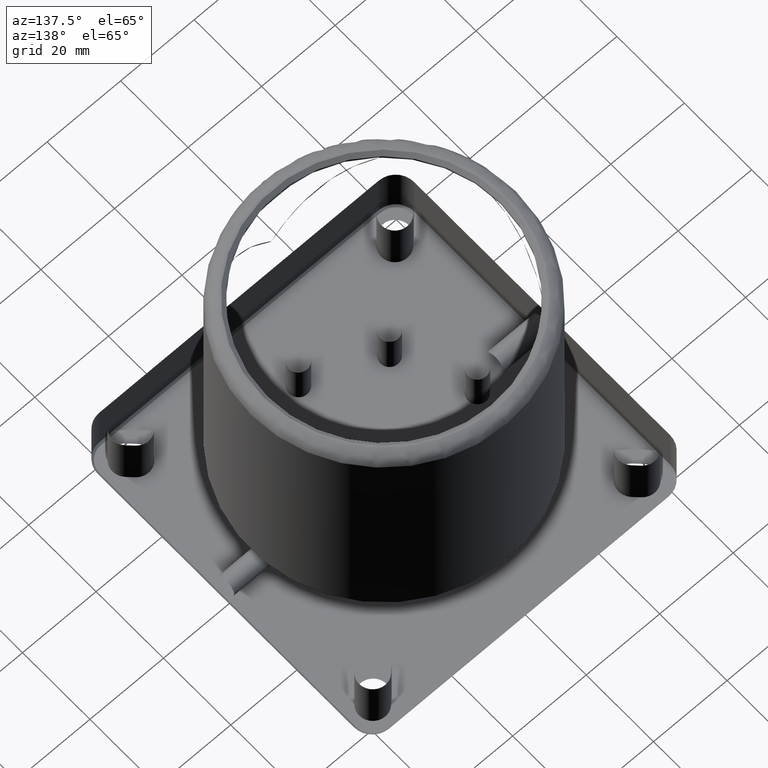
[diagram: clean part render]
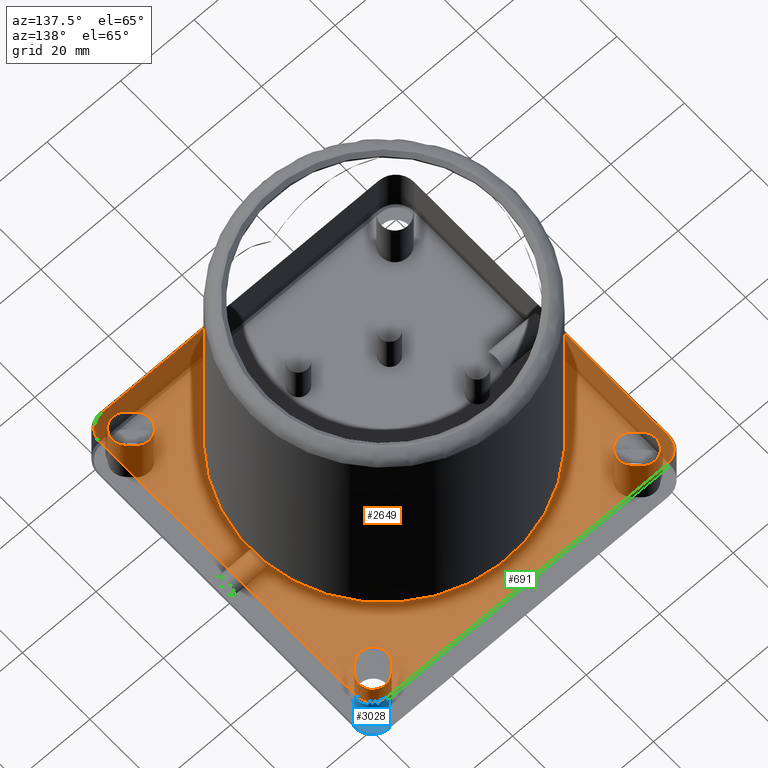
[diagram: same view with three faces highlighted in distinct colors, each labeled with its STEP entity id]
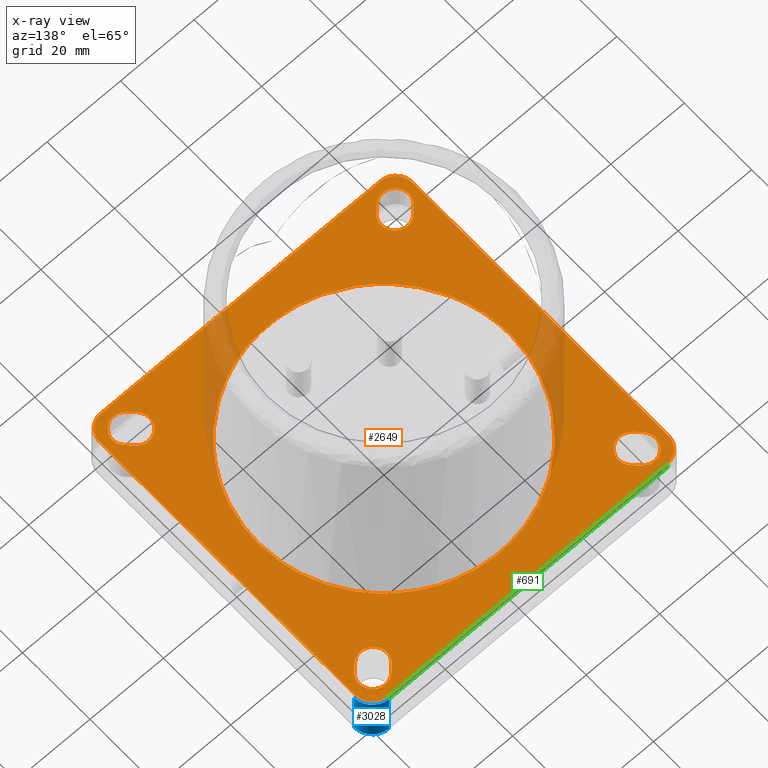
[diagram: x-ray of the same camera — body ghosted, the three highlighted faces saturated]
A machine part, auxiliary view with three faces highlighted in distinct colors.
The next image is the same camera in x-ray (body ghosted, the three faces saturated) — at least one of them is partly hidden behind the body in this view.
Their STEP definitions:

[orange] entity #2649 — the highlighted planar face has unit normal (0, 0, 1).
#3 = CARTESIAN_POINT ( 'NONE',  ( -8.401569188237022701, -33.22235698978486340, 15.00000000000000000 ) ) ;
#10 = CARTESIAN_POINT ( 'NONE',  ( 31.81856637399124565, 12.67448652400060993, 15.00000000000000000 ) ) ;
#16 = CARTESIAN_POINT ( 'NONE',  ( 32.59762261269996486, 37.83021279348017885, 15.00000000000000000 ) ) ;
#18 = CARTESIAN_POINT ( 'NONE',  ( -28.78525613063744260, 18.55995066985454756, 15.00000000000000000 ) ) ;
#20 = CARTESIAN_POINT ( 'NONE',  ( 2.094545233178836341, -34.24996756767365014, 15.00000000000000000 ) ) ;
#21 = CARTESIAN_POINT ( 'NONE',  ( 37.83021279348029253, -32.59762261269983696, 15.00000000000000000 ) ) ;
#33 = CARTESIAN_POINT ( 'NONE',  ( -19.47697120087105205, 28.17296328099083169, 15.00000000000000000 ) ) ;
#35 = CARTESIAN_POINT ( 'NONE',  ( -6.167846680926237113, -33.69007565662280967, 15.00000000000000000 ) ) ;
#41 = CARTESIAN_POINT ( 'NONE',  ( 34.25000000000000000, 0.000000000000000000, 15.00000000000000000 ) ) ;
#42 = CIRCLE ( 'NONE', #1908, 3.700000000000001954 ) ;
#48 = DIRECTION ( 'NONE',  ( -0.7071067811865457964, 0.7071067811865492381, -0.000000000000000000 ) ) ;
#50 = CARTESIAN_POINT ( 'NONE',  ( 0.000000000000000000, 34.25000000000000000, 15.00000000000000000 ) ) ;
#54 = CARTESIAN_POINT ( 'NONE',  ( 8.398337303323046399, -33.20929556522444415, 15.00000000000000000 ) ) ;
#71 = CARTESIAN_POINT ( 'NONE',  ( -28.25679385229699392, -19.35566686671187497, 15.00000000000000000 ) ) ;
#76 = CARTESIAN_POINT ( 'NONE',  ( -42.50000000002977885, 38.00000000000000711, 14.99999999997021405 ) ) ;
#78 = CARTESIAN_POINT ( 'NONE',  ( 33.63969707683023103, 6.436882944549512153, 15.00000000000000000 ) ) ;
#83 = LINE ( 'NONE', #1948, #3111 ) ;
#85 = CARTESIAN_POINT ( 'NONE',  ( 0.000000000000000000, 42.49999999999999289, 15.00000000000000000 ) ) ;
#89 = CARTESIAN_POINT ( 'NONE',  ( -28.42224238251371915, -19.11125541277128548, 15.00000000000000000 ) ) ;
#91 = CARTESIAN_POINT ( 'NONE',  ( 33.74744920062587994, -5.845762482553018557, 15.00000000000000000 ) ) ;
#102 = CARTESIAN_POINT ( 'NONE',  ( -26.58435895103849944, -21.59554893376271778, 15.00000000000000000 ) ) ;
#103 = CARTESIAN_POINT ( 'NONE',  ( -37.83021279348029253, 32.59762261269983696, 15.00000000000000000 ) ) ;
#104 = CARTESIAN_POINT ( 'NONE',  ( 33.70180083634940615, -6.103457008374947534, 15.00000000000000000 ) ) ;
#110 = CARTESIAN_POINT ( 'NONE',  ( -7.048726455035094318, 33.51689659489139217, 15.00000000000000000 ) ) ;
#116 = CARTESIAN_POINT ( 'NONE',  ( -28.66709625923881788, -18.74193405344112051, 15.00000000000000000 ) ) ;
#127 = CARTESIAN_POINT ( 'NONE',  ( -12.63951289224551644, 31.83247371030407891, 15.00000000000000000 ) ) ;
#134 = CARTESIAN_POINT ( 'NONE',  ( -34.25001621617688841, 1.047272616528097888, 15.00000000000000000 ) ) ;
#144 = CARTESIAN_POINT ( 'NONE',  ( -8.933324408635415992, 33.06946468238766812, 15.00000000000000000 ) ) ;
#152 = CARTESIAN_POINT ( 'NONE',  ( -34.20237506328763288, 2.090261803551808573, 15.00000000000000000 ) ) ;
#155 = CARTESIAN_POINT ( 'NONE',  ( 22.50829446746231710, -25.84291078375484929, 15.00000000000000000 ) ) ;
#163 = CARTESIAN_POINT ( 'NONE',  ( 5.910182282163114920, 33.73628621925971061, 15.00000000000000000 ) ) ;
#169 = DIRECTION ( 'NONE',  ( -1.000000000000000000, 0.000000000000000000, 0.000000000000000000 ) ) ;
#170 = PLANE ( 'NONE',  #1103 ) ;
#171 = CARTESIAN_POINT ( 'NONE',  ( -33.66552296086445040, -6.300494463423252256, 15.00000000000000000 ) ) ;
#172 = EDGE_CURVE ( 'NONE', #2335, #1732, #3082, .T. ) ;
#174 = CARTESIAN_POINT ( 'NONE',  ( 18.92704542950940549, -28.54522247397420287, 15.00000000000000000 ) ) ;
#181 = CARTESIAN_POINT ( 'NONE',  ( 31.51595084812570136, 13.40942303025177829, 15.00000000000000000 ) ) ;
#191 = CARTESIAN_POINT ( 'NONE',  ( -32.25406854607778939, -11.57463293048441955, 15.00000000000000000 ) ) ;
#193 = CARTESIAN_POINT ( 'NONE',  ( 31.41929267707668672, -13.68323574352899463, 15.00000000000000000 ) ) ;
#199 = CARTESIAN_POINT ( 'NONE',  ( 18.74193405344113472, 28.66709625923880722, 15.00000000000000000 ) ) ;
#201 = AXIS2_PLACEMENT_3D ( 'NONE', #527, #1555, #3161 ) ;
#207 = CARTESIAN_POINT ( 'NONE',  ( -34.05937051280174899, -4.172662868201526543, 15.00000000000000000 ) ) ;
#209 = CIRCLE ( 'NONE', #2132, 3.700000000000001954 ) ;
#212 = CARTESIAN_POINT ( 'NONE',  ( 28.90220035114737485, -18.37733982263557664, 15.00000000000000000 ) ) ;
#218 = CARTESIAN_POINT ( 'NONE',  ( 17.76466306192001809, 29.28431529739652106, 15.00000000000000000 ) ) ;
#223 = VECTOR ( 'NONE', #570, 1000.000000000000000 ) ;
#227 = CARTESIAN_POINT ( 'NONE',  ( -30.94146827231229580, 14.73245590150050610, 15.00000000000000000 ) ) ;
#229 = CARTESIAN_POINT ( 'NONE',  ( 29.05650511067647201, -18.13302207477330441, 15.00000000000000000 ) ) ;
#233 = EDGE_CURVE ( 'NONE', #1342, #1410, #1580, .T. ) ;
#234 = VERTEX_POINT ( 'NONE', #1060 ) ;
#235 = CARTESIAN_POINT ( 'NONE',  ( 27.83469084586458919, 19.95978482340471061, 15.00000000000000000 ) ) ;
#243 = CARTESIAN_POINT ( 'NONE',  ( -18.86549186962017544, 28.58603145343085927, 15.00000000000000000 ) ) ;
#245 = CARTESIAN_POINT ( 'NONE',  ( -11.04674015614585514, -32.41984018096584208, 15.00000000000000000 ) ) ;
#251 = CARTESIAN_POINT ( 'NONE',  ( 18.43831468229871362, 28.86342155280103938, 15.00000000000000000 ) ) ;
#255 = LINE ( 'NONE', #1291, #2569 ) ;
#256 = VERTEX_POINT ( 'NONE', #824 ) ;
#260 = CARTESIAN_POINT ( 'NONE',  ( -13.93916018970815784, 31.28670844383865557, 15.00000000000000000 ) ) ;
#262 = CARTESIAN_POINT ( 'NONE',  ( 7.590252144583220506, -33.39966826912984743, 15.00000000000000000 ) ) ;
#269 = VERTEX_POINT ( 'NONE', #1559 ) ;
#276 = CARTESIAN_POINT ( 'NONE',  ( -12.80873529549015366, 31.76474533847592596, 15.00000000000000000 ) ) ;
#279 = CARTESIAN_POINT ( 'NONE',  ( -4.683813625290834892, -33.92838573158413595, 15.00000000000000000 ) ) ;
#280 = DIRECTION ( 'NONE',  ( 0.7071067811865457964, -0.7071067811865492381, -0.000000000000000000 ) ) ;
#285 = CARTESIAN_POINT ( 'NONE',  ( 31.83247371030432760, 12.63951289224462293, 15.00000000000000000 ) ) ;
#286 = DIRECTION ( 'NONE',  ( 0.000000000000000000, 0.000000000000000000, -1.000000000000000000 ) ) ;
#293 = CARTESIAN_POINT ( 'NONE',  ( -31.41929267712369267, 13.68323574344577942, 15.00000000000000000 ) ) ;
#295 = CARTESIAN_POINT ( 'NONE',  ( -11.56967876059497691, -32.23800580613644939, 15.00000000000000000 ) ) ;
#303 = CARTESIAN_POINT ( 'NONE',  ( 33.61341712356931311, 6.573140070188857820, 15.00000000000000000 ) ) ;
#307 = ORIENTED_EDGE ( 'NONE', *, *, #2168, .F. ) ;
#311 = CARTESIAN_POINT ( 'NONE',  ( 3.648320439849575880, 34.05942728034427347, 15.00000000000000000 ) ) ;
#313 = CARTESIAN_POINT ( 'NONE',  ( -5.974616159770555157, -33.72493137529672680, 15.00000000000000000 ) ) ;
#333 = CARTESIAN_POINT ( 'NONE',  ( -12.41339303772131863, -31.92131513291097278, 15.00000000000000000 ) ) ;
#336 = CARTESIAN_POINT ( 'NONE',  ( 33.67820886826766724, -6.232234545115964863, 15.00000000000000000 ) ) ;
#345 = DIRECTION ( 'NONE',  ( -1.000000000000000000, 0.000000000000000000, 0.000000000000000000 ) ) ;
#349 = CARTESIAN_POINT ( 'NONE',  ( -12.34871839274843452, -31.94646840852209735, 15.00000000000000000 ) ) ;
#353 = CARTESIAN_POINT ( 'NONE',  ( 34.25000000000000000, 0.000000000000000000, 15.00000000000000000 ) ) ;
#364 = CARTESIAN_POINT ( 'NONE',  ( -26.95508303467179800, -21.13917616691287549, 15.00000000000000000 ) ) ;
#367 = CARTESIAN_POINT ( 'NONE',  ( 32.59844258411862228, -10.52287797758834209, 15.00000000000000000 ) ) ;
#373 = CARTESIAN_POINT ( 'NONE',  ( 5.974616159758819656, 33.72493137529836105, 15.00000000000000000 ) ) ;
#374 = LINE ( 'NONE', #2442, #1348 ) ;
#376 = CARTESIAN_POINT ( 'NONE',  ( 42.49999999999999289, 0.000000000000000000, 15.00000000000000000 ) ) ;
#378 = CARTESIAN_POINT ( 'NONE',  ( -12.57361905433691440, -31.85856045621039812, 15.00000000000000000 ) ) ;
#380 = CARTESIAN_POINT ( 'NONE',  ( 33.68452356094980615, -6.198107797789387696, 15.00000000000000000 ) ) ;
#387 = CARTESIAN_POINT ( 'NONE',  ( 2.090261803570587329, 34.20237506327735844, 15.00000000000000000 ) ) ;
#393 = CARTESIAN_POINT ( 'NONE',  ( -18.25539010325727318, -28.97975794787004133, 15.00000000000000000 ) ) ;
#394 = AXIS2_PLACEMENT_3D ( 'NONE', #435, #3375, #3328 ) ;
#396 = CARTESIAN_POINT ( 'NONE',  ( 33.71338742422386048, -6.039049223776272513, 15.00000000000000000 ) ) ;
#402 = CARTESIAN_POINT ( 'NONE',  ( -12.67448652399808573, 31.81856637399247489, 15.00000000000000000 ) ) ;
#403 = EDGE_CURVE ( 'NONE', #430, #1342, #1951, .T. ) ;
#409 = CARTESIAN_POINT ( 'NONE',  ( -33.89264675884417954, 4.942419207225575484, 15.00000000000000000 ) ) ;
#413 = CARTESIAN_POINT ( 'NONE',  ( 31.87075608390148318, -12.54267017343978097, 15.00000000000000000 ) ) ;
#419 = CARTESIAN_POINT ( 'NONE',  ( 5.200757074895846266, 33.85392920051637589, 15.00000000000000000 ) ) ;
#423 = ORIENTED_EDGE ( 'NONE', *, *, #2185, .F. ) ;
#428 = FACE_OUTER_BOUND ( 'NONE', #2408, .T. ) ;
#429 = CARTESIAN_POINT ( 'NONE',  ( -33.63969707683100552, -6.436882944550545105, 15.00000000000000000 ) ) ;
#430 = VERTEX_POINT ( 'NONE', #1574 ) ;
#431 = CARTESIAN_POINT ( 'NONE',  ( 19.35566686671184300, -28.25679385229059903, 15.00000000000000000 ) ) ;
#432 = VERTEX_POINT ( 'NONE', #2808 ) ;
#435 = CARTESIAN_POINT ( 'NONE',  ( -36.62813126546316056, 36.62813126546316056, 15.00000000000000000 ) ) ;
#437 = VERTEX_POINT ( 'NONE', #3403 ) ;
#438 = CARTESIAN_POINT ( 'NONE',  ( 31.28670844381884564, 13.93916018974887905, 15.00000000000000000 ) ) ;
#447 = CARTESIAN_POINT ( 'NONE',  ( -33.81223305663351653, 5.458827228200973991, 15.00000000000000000 ) ) ;
#450 = CARTESIAN_POINT ( 'NONE',  ( 29.57833700595369919, -17.26849800231602217, 15.00000000000000000 ) ) ;
#457 = CARTESIAN_POINT ( 'NONE',  ( 27.31400651880553099, 20.67318854349409207, 15.00000000000000000 ) ) ;
#464 = DIRECTION ( 'NONE',  ( 0.000000000000000000, -1.000000000000000000, -0.000000000000000000 ) ) ;
#465 = CARTESIAN_POINT ( 'NONE',  ( -33.73628621926173565, 5.910182282159404998, 15.00000000000000000 ) ) ;
#467 = CARTESIAN_POINT ( 'NONE',  ( 31.88343372082194094, -12.51036171264436447, 15.00000000000000000 ) ) ;
#473 = DIRECTION ( 'NONE',  ( -1.000000000000000000, 0.000000000000000000, 0.000000000000000000 ) ) ;
#475 = CARTESIAN_POINT ( 'NONE',  ( 31.40294799521646496, 13.67513310872388388, 15.00000000000000000 ) ) ;
#480 = CARTESIAN_POINT ( 'NONE',  ( 0.000000000000000000, 0.000000000000000000, 15.00000000000000000 ) ) ;
#481 = CARTESIAN_POINT ( 'NONE',  ( -33.67820886826766724, 6.232234545115967528, 15.00000000000000000 ) ) ;
#486 = CARTESIAN_POINT ( 'NONE',  ( 20.19758606340748841, -27.66112940352573446, 15.00000000000000000 ) ) ;
#492 = CARTESIAN_POINT ( 'NONE',  ( 16.77065970608899903, 29.86911697896183782, 15.00000000000000000 ) ) ;
#500 = CARTESIAN_POINT ( 'NONE',  ( -30.14693000927493571, 16.26612846423725145, 15.00000000000000000 ) ) ;
#502 = CARTESIAN_POINT ( 'NONE',  ( 6.334602529992005238, -33.65910432895856275, 15.00000000000000000 ) ) ;
#509 = CARTESIAN_POINT ( 'NONE',  ( 17.26849800222000297, 29.57833700600880178, 15.00000000000000000 ) ) ;
#517 = CARTESIAN_POINT ( 'NONE',  ( -28.90220035116389852, 18.37733982260632715, 15.00000000000000000 ) ) ;
#519 = CARTESIAN_POINT ( 'NONE',  ( 6.436882944543308227, -33.63969707683143895, 15.00000000000000000 ) ) ;
#521 = EDGE_CURVE ( 'NONE', #896, #1614, #374, .T. ) ;
#522 = DIRECTION ( 'NONE',  ( -1.000000000000000000, -9.251858538528012264E-15, 0.000000000000000000 ) ) ;
#525 = VERTEX_POINT ( 'NONE', #1154 ) ;
#526 = CARTESIAN_POINT ( 'NONE',  ( 33.51689659488628337, 7.048726455053866857, 15.00000000000000000 ) ) ;
#527 = CARTESIAN_POINT ( 'NONE',  ( -37.99999999999999289, -38.00000000000000000, 14.99999999994043520 ) ) ;
#534 = CARTESIAN_POINT ( 'NONE',  ( -18.92704542950811586, 28.54522247397687451, 15.00000000000000000 ) ) ;
#537 = CARTESIAN_POINT ( 'NONE',  ( 12.80873529549467804, -31.76474533847476067, 15.00000000000000000 ) ) ;
#544 = CARTESIAN_POINT ( 'NONE',  ( 31.84524931138824044, 12.60724380249414089, 15.00000000000000000 ) ) ;
#548 = EDGE_CURVE ( 'NONE', #525, #1451, #83, .T. ) ;
#552 = CARTESIAN_POINT ( 'NONE',  ( -25.89006061742288978, 22.54670132963343576, 15.00000000000000000 ) ) ;
#555 = CARTESIAN_POINT ( 'NONE',  ( 6.913111511777512597, -33.54539644214951721, 15.00000000000000000 ) ) ;
#563 = CARTESIAN_POINT ( 'NONE',  ( 33.65910432895794457, 6.334602529995158271, 15.00000000000000000 ) ) ;
#570 = DIRECTION ( 'NONE',  ( -1.000000000000000000, -0.000000000000000000, 0.000000000000000000 ) ) ;
#571 = CARTESIAN_POINT ( 'NONE',  ( -31.89611135774321582, 12.47805325184275382, 15.00000000000000000 ) ) ;
#573 = CARTESIAN_POINT ( 'NONE',  ( -5.200757074937035540, -33.85392920051059207, 15.00000000000000000 ) ) ;
#580 = CARTESIAN_POINT ( 'NONE',  ( 33.67820886826768145, 6.232234545115955981, 15.00000000000000000 ) ) ;
#587 = CARTESIAN_POINT ( 'NONE',  ( 6.232234545115957758, 33.67820886826766724, 15.00000000000000000 ) ) ;
#589 = CARTESIAN_POINT ( 'NONE',  ( -15.75490427677868333, -30.41177609688649497, 15.00000000000000000 ) ) ;
#604 = CARTESIAN_POINT ( 'NONE',  ( -30.67638040042820791, -15.24414861784204689, 15.00000000000000000 ) ) ;
#620 = CARTESIAN_POINT ( 'NONE',  ( -31.62814452641067575, -13.14329220241548413, 15.00000000000000000 ) ) ;
#634 = CARTESIAN_POINT ( 'NONE',  ( -24.21840725563926000, -24.21840725563925290, 15.00000000000000000 ) ) ;
#636 = CARTESIAN_POINT ( 'NONE',  ( 33.81222241476743307, -5.458884740455831164, 15.00000000000000000 ) ) ;
#643 = CARTESIAN_POINT ( 'NONE',  ( -6.913111511780639873, 33.54539644215014249, 15.00000000000000000 ) ) ;
#648 = CARTESIAN_POINT ( 'NONE',  ( -18.74193405344113117, -28.66709625923880722, 15.00000000000000000 ) ) ;
#649 = AXIS2_PLACEMENT_3D ( 'NONE', #1822, #827, #2887 ) ;
#656 = B_SPLINE_CURVE_WITH_KNOTS ( 'NONE', 3,
 ( #353, #3268, #905, #888, #2998, #876, #2755, #1956, #1650, #636, #1911, #1388, #91, #2465, #1131, #396, #3014, #104, #2189, #2173, #380, #336, #2433, #3237, #3221, #1434, #367, #2739, #2498, #1419, #2823, #736, #670, #1452, #941, #1779, #2772, #1212, #958, #467, #413, #1715, #2584, #193, #2292, #3371, #1469, #2012, #450, #2790, #2565, #1006, #229, #3067, #212, #719, #1245, #2256, #2516, #2324, #2841, #3033, #989, #2533, #1748, #155, #973, #1197, #3324, #486, #2276, #1487, #3305, #431, #1524, #1733, #704, #1262, #174, #1993, #2807, #3050, #2551, #687, #1229, #3340, #2029, #3080, #1764, #1505, #2307, #3355, #2046, #3096, #2899, #2668, #537, #3390, #2931, #2881, #2062, #1544, #822, #2118, #1059, #1615, #3113, #54, #753, #262, #1073, #2915, #555, #2634, #1871, #1798, #2342, #519, #805, #1024, #502, #2098, #1595, #2599, #2137, #20, #1579, #2864, #2079, #3135, #3186, #772, #279, #1818, #573, #1281, #3169, #1350, #788, #1564, #313, #1316, #2377, #2360, #2414, #35, #2619, #1854, #1299, #3, #1041, #2652, #3153, #245, #1836, #295, #1333, #2395, #886, #1923, #2753, #349, #333, #2737, #2495, #2948, #903, #378, #1936, #2216, #2155, #589, #2431, #3266, #842, #2702, #2446, #2996, #1890, #393, #3202, #1092, #3012, #3250, #1432, #1698, #648, #1665, #2478, #634, #1679, #3233, #102, #364, #1631, #2685, #1384, #1368, #1417, #71, #1108, #89, #2171, #872, #2463, #3219, #856, #116, #1906, #1159, #2964, #604, #2720, #1648, #1129, #1953, #2187, #2980, #620, #1401, #1142, #2200, #2027, #3079, #2769, #1195, #1712, #3030, #2305, #191, #2547, #3092, #1175, #1521, #2233, #1730, #2563, #971, #717, #702, #3354, #1990, #987, #429, #2805, #3337, #2821, #171, #1761, #667, #207, #1485, #3065, #134, #152, #1449, #1243, #2253, #1746, #409, #2043, #447, #1503, #3285, #3302, #465, #734, #1227, #2290, #1467, #1778, #2838, #2513, #481, #939, #3048, #685, #2010, #2787, #919, #1972, #2532, #1210, #2272, #3323, #955, #3183, #1815, #1794, #802, #571, #1004, #2393, #1851, #2374, #293, #227, #2060, #500, #1330, #2322, #2614, #2879, #820, #1314, #1056, #517, #2581, #1071, #18, #2928, #1869, #2134, #3150, #552, #2116, #3166, #1297, #1577, #1833, #3369, #2859, #3110, #1259, #33, #750, #1542, #1562, #2597, #2358, #534, #243, #1278, #2913, #2339, #1593, #3388, #1021, #785, #2077, #260, #3131, #769, #3406, #1038, #2095, #2897, #2632, #276, #2650, #1611, #678, #402, #127, #1689, #897, #2264, #1443, #144, #1947, #3055, #913, #2000, #110, #643, #2487, #1411, #1185, #2666, #3312, #2748, #2244, #2763, #3294, #838, #1090, #946, #2781, #50, #2412, #387, #1426, #311, #3022, #1347, #3005, #419, #1170, #2226, #2152, #2472, #163, #373, #3260, #3200, #1152, #1888, #3275, #2946, #587, #932, #2524, #2209, #1628, #2730, #1965, #1460, #661, #1706, #1982, #2505, #1204, #3040, #1722, #1270, #1754, #2037, #3330, #2332, #2556, #2870, #2848, #963, #2539, #1553, #492, #509, #2019, #218, #2608, #2299, #1770, #1532, #251, #742, #2314, #3072, #1289, #199, #996, #2068, #2829, #710, #2349, #726, #1739, #457, #2086, #235, #1495, #2283, #2813, #2572, #1236, #3122, #3398, #1012, #3347, #1030, #695, #980, #2589, #1511, #2797, #3378, #3085, #438, #475, #181, #759, #1251, #1475, #1807, #3361, #1219, #2052, #3103, #1785, #10, #285, #544, #777, #1570, #1048, #1896, #2889, #1321, #1065, #2938, #526, #1374, #1824, #2692, #303, #2404, #78, #1585, #2125, #563, #2905, #2675, #580, #1860, #2144, #41 ),
 .UNSPECIFIED., .T., .F.,
 ( 4, 3, 3, 3, 3, 3, 3, 3, 3, 3, 3, 3, 3, 3, 3, 3, 3, 3, 3, 3, 3, 3, 3, 3, 3, 3, 3, 3, 3, 3, 3, 3, 3, 3, 3, 3, 3, 3, 3, 3, 3, 3, 3, 3, 3, 3, 3, 3, 3, 3, 3, 3, 3, 3, 3, 3, 3, 3, 3, 3, 3, 3, 3, 3, 3, 3, 3, 3, 3, 3, 3, 3, 3, 3, 3, 3, 3, 3, 3, 3, 3, 3, 3, 3, 3, 3, 3, 3, 3, 3, 3, 3, 3, 3, 3, 3, 3, 3, 3, 3, 3, 3, 3, 3, 3, 3, 3, 3, 3, 3, 3, 3, 3, 3, 3, 3, 3, 3, 3, 3, 3, 3, 3, 3, 3, 3, 3, 3, 3, 3, 3, 3, 3, 3, 3, 3, 3, 3, 3, 3, 3, 3, 3, 3, 3, 3, 3, 3, 3, 3, 3, 3, 3, 3, 3, 3, 3, 3, 3, 3, 3, 3, 3, 3, 3, 3, 3, 3, 4 ),
 ( 0.000000000000000000, 0.005952380952380952051, 0.01190476190476190410, 0.01785714285714285615, 0.02380952380952380820, 0.02976190476190476025, 0.03571428571428571230, 0.04166666666666666435, 0.04761904761904761640, 0.05357142857142856845, 0.05952380952380952051, 0.06547619047619047949, 0.07142857142857142461, 0.07738095238095238360, 0.08333333333333332871, 0.08928571428571428770, 0.09523809523809523281, 0.1011904761904761918, 0.1071428571428571369, 0.1130952380952380959, 0.1190476190476190410, 0.1250000000000000000, 0.1309523809523809590, 0.1369047619047619180, 0.1428571428571428492, 0.1488095238095238082, 0.1547619047619047672, 0.1607142857142857262, 0.1666666666666666574, 0.1726190476190476164, 0.1785714285714285754, 0.1845238095238095344, 0.1904761904761904656, 0.1964285714285714246, 0.2023809523809523836, 0.2083333333333333426, 0.2142857142857142738, 0.2202380952380952328, 0.2261904761904761918, 0.2321428571428571508, 0.2380952380952380820, 0.2440476190476190410, 0.2500000000000000000, 0.2559523809523809312, 0.2619047619047619180, 0.2678571428571428492, 0.2738095238095238360, 0.2797619047619047672, 0.2857142857142856984, 0.2916666666666666852, 0.2976190476190476164, 0.3035714285714285476, 0.3095238095238095344, 0.3154761904761904656, 0.3214285714285714524, 0.3273809523809523836, 0.3333333333333333148, 0.3392857142857143016, 0.3452380952380952328, 0.3511904761904761640, 0.3571428571428571508, 0.3630952380952380820, 0.3690476190476190688, 0.3750000000000000000, 0.3809523809523809312, 0.3869047619047619180, 0.3928571428571428492, 0.3988095238095238360, 0.4047619047619047672, 0.4107142857142856984, 0.4166666666666666852, 0.4226190476190476164, 0.4285714285714285476, 0.4345238095238095344, 0.4404761904761904656, 0.4464285714285714524, 0.4523809523809523836, 0.4583333333333333148, 0.4642857142857143016, 0.4702380952380952328, 0.4761904761904761640, 0.4821428571428571508, 0.4880952380952380820, 0.4940476190476190688, 0.5000000000000000000, 0.5059523809523809312, 0.5119047619047618625, 0.5178571428571429047, 0.5238095238095238360, 0.5297619047619047672, 0.5357142857142856984, 0.5416666666666666297, 0.5476190476190476719, 0.5535714285714286031, 0.5595238095238095344, 0.5654761904761904656, 0.5714285714285713969, 0.5773809523809523281, 0.5833333333333333703, 0.5892857142857143016, 0.5952380952380952328, 0.6011904761904761640, 0.6071428571428570953, 0.6130952380952381375, 0.6190476190476190688, 0.6250000000000000000, 0.6309523809523809312, 0.6369047619047618625, 0.6428571428571429047, 0.6488095238095238360, 0.6547619047619047672, 0.6607142857142856984, 0.6666666666666666297, 0.6726190476190476719, 0.6785714285714286031, 0.6845238095238095344, 0.6904761904761904656, 0.6964285714285713969, 0.7023809523809523281, 0.7083333333333333703, 0.7142857142857143016, 0.7202380952380952328, 0.7261904761904761640, 0.7321428571428570953, 0.7380952380952381375, 0.7440476190476190688, 0.7500000000000000000, 0.7559523809523809312, 0.7619047619047618625, 0.7678571428571429047, 0.7738095238095238360, 0.7797619047619047672, 0.7857142857142856984, 0.7916666666666666297, 0.7976190476190476719, 0.8035714285714286031, 0.8095238095238095344, 0.8154761904761904656, 0.8214285714285713969, 0.8273809523809523281, 0.8333333333333333703, 0.8392857142857143016, 0.8452380952380952328, 0.8511904761904761640, 0.8571428571428570953, 0.8630952380952381375, 0.8690476190476190688, 0.8750000000000000000, 0.8809523809523809312, 0.8869047619047618625, 0.8928571428571429047, 0.8988095238095238360, 0.9047619047619047672, 0.9107142857142856984, 0.9166666666666666297, 0.9226190476190476719, 0.9285714285714286031, 0.9345238095238095344, 0.9404761904761904656, 0.9464285714285713969, 0.9523809523809523281, 0.9583333333333333703, 0.9642857142857143016, 0.9702380952380952328, 0.9761904761904761640, 0.9821428571428570953, 0.9880952380952381375, 0.9940476190476190688, 1.000000000000000000 ),
 .UNSPECIFIED. ) ;
#661 = CARTESIAN_POINT ( 'NONE',  ( 11.56967876053036193, 32.23800580615036182, 15.00000000000000000 ) ) ;
#662 = EDGE_CURVE ( 'NONE', #1732, #1459, #1126, .T. ) ;
#663 = CARTESIAN_POINT ( 'NONE',  ( -35.21391770309005409, 35.21391770309005409, 15.00000000000000000 ) ) ;
#667 = CARTESIAN_POINT ( 'NONE',  ( -33.67820886826767435, -6.232234545115957758, 15.00000000000000000 ) ) ;
#668 = AXIS2_PLACEMENT_3D ( 'NONE', #3053, #2587, #473 ) ;
#670 = CARTESIAN_POINT ( 'NONE',  ( 32.04566752335808388, -12.08961574918420290, 15.00000000000000000 ) ) ;
#674 = CARTESIAN_POINT ( 'NONE',  ( 42.50000000004069989, -38.00000000000001421, 14.99999999995930011 ) ) ;
#678 = CARTESIAN_POINT ( 'NONE',  ( -12.70806843949742060, 31.80514904517375996, 15.00000000000000000 ) ) ;
#685 = CARTESIAN_POINT ( 'NONE',  ( -32.91686373031470225, 9.464070731060512998, 15.00000000000000000 ) ) ;
#687 = CARTESIAN_POINT ( 'NONE',  ( 16.77782118056284943, -29.88184213741802253, 15.00000000000000000 ) ) ;
#695 = CARTESIAN_POINT ( 'NONE',  ( 28.66709625923881077, 18.74193405344112762, 15.00000000000000000 ) ) ;
#701 = CARTESIAN_POINT ( 'NONE',  ( 34.01183617507307133, 39.24442635585327821, 15.00000000000000000 ) ) ;
#702 = CARTESIAN_POINT ( 'NONE',  ( -33.57308905522591402, -6.777263047675951668, 15.00000000000000000 ) ) ;
#704 = CARTESIAN_POINT ( 'NONE',  ( 19.05000231715171921, -28.46342013069786248, 15.00000000000000000 ) ) ;
#710 = CARTESIAN_POINT ( 'NONE',  ( 25.05426021861487129, 23.38258057477853669, 15.00000000000000000 ) ) ;
#717 = CARTESIAN_POINT ( 'NONE',  ( -33.54539644214816008, -6.913111511799923115, 15.00000000000000000 ) ) ;
#719 = CARTESIAN_POINT ( 'NONE',  ( 28.86342155278649457, -18.43831468232404092, 15.00000000000000000 ) ) ;
#726 = CARTESIAN_POINT ( 'NONE',  ( 26.58435895100256730, 21.59554893379864993, 15.00000000000000000 ) ) ;
#734 = CARTESIAN_POINT ( 'NONE',  ( -33.72493137530000951, 5.974616159755821165, 15.00000000000000000 ) ) ;
#736 = CARTESIAN_POINT ( 'NONE',  ( 32.09435808874204810, -11.95980467218312349, 15.00000000000000000 ) ) ;
#742 = CARTESIAN_POINT ( 'NONE',  ( 18.49918496471490670, 28.82444014595877135, 15.00000000000000000 ) ) ;
#749 = CARTESIAN_POINT ( 'NONE',  ( 34.01183617507292212, -39.24442635585337769, 15.00000000000000000 ) ) ;
#750 = CARTESIAN_POINT ( 'NONE',  ( -19.35566686670785330, 28.25679385229887330, 15.00000000000000000 ) ) ;
#752 = ORIENTED_EDGE ( 'NONE', *, *, #1244, .F. ) ;
#753 = CARTESIAN_POINT ( 'NONE',  ( 7.859613864163162766, -33.33621070116138441, 15.00000000000000000 ) ) ;
#759 = CARTESIAN_POINT ( 'NONE',  ( 31.57245227458031778, 13.27656799101572815, 15.00000000000000000 ) ) ;
#765 = VECTOR ( 'NONE', #2767, 1000.000000000000000 ) ;
#769 = CARTESIAN_POINT ( 'NONE',  ( -13.40942303022505477, 31.51595084813870074, 15.00000000000000000 ) ) ;
#770 = CIRCLE ( 'NONE', #2978, 3.700000000000001954 ) ;
#772 = CARTESIAN_POINT ( 'NONE',  ( -4.166602461298695381, -33.99986367709147572, 15.00000000000000000 ) ) ;
#776 = EDGE_LOOP ( 'NONE', ( #1273, #3201, #423, #2078 ) ) ;
#777 = CARTESIAN_POINT ( 'NONE',  ( 32.25406854607353324, 11.57463293047874942, 15.00000000000000000 ) ) ;
#785 = CARTESIAN_POINT ( 'NONE',  ( -14.72619244042655140, 30.92827969418805978, 15.00000000000000000 ) ) ;
#788 = CARTESIAN_POINT ( 'NONE',  ( -5.845731672438051696, -33.74745490162075612, 15.00000000000000000 ) ) ;
#802 = CARTESIAN_POINT ( 'NONE',  ( -31.90873849510641946, 12.44573036020034706, 15.00000000000000000 ) ) ;
#805 = CARTESIAN_POINT ( 'NONE',  ( 6.402804068080331312, -33.64621661301014655, 15.00000000000000000 ) ) ;
#818 = DIRECTION ( 'NONE',  ( 0.7071067811865517916, 0.7071067811865433539, -0.000000000000000000 ) ) ;
#820 = CARTESIAN_POINT ( 'NONE',  ( -29.13244183960022227, 18.01023573712493686, 15.00000000000000000 ) ) ;
#822 = CARTESIAN_POINT ( 'NONE',  ( 12.60724380249414978, -31.84524931138823334, 15.00000000000000000 ) ) ;
#824 = CARTESIAN_POINT ( 'NONE',  ( -37.83021279348061938, -32.59762261269942485, 15.00000000000000000 ) ) ;
#827 = DIRECTION ( 'NONE',  ( -0.000000000000000000, -0.000000000000000000, 1.000000000000000000 ) ) ;
#838 = CARTESIAN_POINT ( 'NONE',  ( -6.264415352568452278, 33.67225321757162249, 15.00000000000000000 ) ) ;
#840 = EDGE_CURVE ( 'NONE', #234, #525, #1677, .T. ) ;
#842 = CARTESIAN_POINT ( 'NONE',  ( -17.26849800231266840, -29.57833700595589477, 15.00000000000000000 ) ) ;
#855 = VERTEX_POINT ( 'NONE', #2643 ) ;
#856 = CARTESIAN_POINT ( 'NONE',  ( -28.62751710130244476, -18.80247108199459660, 15.00000000000000000 ) ) ;
#864 = EDGE_CURVE ( 'NONE', #269, #2684, #2107, .T. ) ;
#872 = CARTESIAN_POINT ( 'NONE',  ( -28.50441349452208328, -18.98859898939777935, 15.00000000000000000 ) ) ;
#876 = CARTESIAN_POINT ( 'NONE',  ( 33.99984137986710664, -4.166722963081686437, 15.00000000000000000 ) ) ;
#886 = CARTESIAN_POINT ( 'NONE',  ( -12.08961574918332715, -32.04566752335809809, 15.00000000000000000 ) ) ;
#888 = CARTESIAN_POINT ( 'NONE',  ( 34.10705221706692214, -3.129099017653667048, 15.00000000000000000 ) ) ;
#893 = AXIS2_PLACEMENT_3D ( 'NONE', #1285, #1838, #522 ) ;
#896 = VERTEX_POINT ( 'NONE', #1881 ) ;
#897 = CARTESIAN_POINT ( 'NONE',  ( -11.57463293045014474, 32.25406854608131368, 15.00000000000000000 ) ) ;
#903 = CARTESIAN_POINT ( 'NONE',  ( -12.54267017343966728, -31.87075608390148318, 15.00000000000000000 ) ) ;
#905 = CARTESIAN_POINT ( 'NONE',  ( 34.20235073902230738, -2.090393260134339570, 15.00000000000000000 ) ) ;
#913 = CARTESIAN_POINT ( 'NONE',  ( -7.590252144588778727, 33.39966826913097719, 15.00000000000000000 ) ) ;
#919 = CARTESIAN_POINT ( 'NONE',  ( -32.41984018097316067, 11.04674015609119486, 15.00000000000000000 ) ) ;
#930 = CARTESIAN_POINT ( 'NONE',  ( 38.00000000000001421, 42.50000000004069989, 14.99999999995930011 ) ) ;
#932 = CARTESIAN_POINT ( 'NONE',  ( 7.324290459487976079, 33.47613870245558587, 15.00000000000000000 ) ) ;
#939 = CARTESIAN_POINT ( 'NONE',  ( -33.47613870244558854, 7.324290459515967022, 15.00000000000000000 ) ) ;
#941 = CARTESIAN_POINT ( 'NONE',  ( 31.97141968590343097, -12.28398602439417253, 15.00000000000000000 ) ) ;
#946 = CARTESIAN_POINT ( 'NONE',  ( -4.172662868156114868, 34.05937051281546957, 15.00000000000000000 ) ) ;
#955 = CARTESIAN_POINT ( 'NONE',  ( -31.99616896505729002, 12.21919593263976012, 15.00000000000000000 ) ) ;
#958 = CARTESIAN_POINT ( 'NONE',  ( 31.89611135774239514, -12.47805325184894976, 15.00000000000000000 ) ) ;
#963 = CARTESIAN_POINT ( 'NONE',  ( 14.73245590149729800, 30.94146827231527297, 15.00000000000000000 ) ) ;
#971 = CARTESIAN_POINT ( 'NONE',  ( -33.51689659488907580, -7.048726455057590989, 15.00000000000000000 ) ) ;
#973 = CARTESIAN_POINT ( 'NONE',  ( 21.59554893376262896, -26.58435895102144286, 15.00000000000000000 ) ) ;
#979 = ORIENTED_EDGE ( 'NONE', *, *, #3279, .F. ) ;
#980 = CARTESIAN_POINT ( 'NONE',  ( 29.30036278622544899, 17.77334159659074686, 15.00000000000000000 ) ) ;
#982 = CARTESIAN_POINT ( 'NONE',  ( 36.62813126546328135, 36.62813126546303266, 15.00000000000000000 ) ) ;
#987 = CARTESIAN_POINT ( 'NONE',  ( -33.62665800447344822, -6.505040697478832179, 15.00000000000000000 ) ) ;
#989 = CARTESIAN_POINT ( 'NONE',  ( 25.89006061740870024, -22.54670132966286289, 15.00000000000000000 ) ) ;
#996 = CARTESIAN_POINT ( 'NONE',  ( 20.72070529469992195, 27.37346190360466736, 15.00000000000000000 ) ) ;
#1004 = CARTESIAN_POINT ( 'NONE',  ( -31.88343372082256266, 12.51036171263969798, 15.00000000000000000 ) ) ;
#1006 = CARTESIAN_POINT ( 'NONE',  ( 29.13244183956938116, -18.01023573717954562, 15.00000000000000000 ) ) ;
#1012 = CARTESIAN_POINT ( 'NONE',  ( 28.54522247397190782, 18.92704542951377178, 15.00000000000000000 ) ) ;
#1015 = EDGE_CURVE ( 'NONE', #1410, #2714, #770, .T. ) ;
#1021 = CARTESIAN_POINT ( 'NONE',  ( -15.24414861778880592, 30.67638040046497139, 15.00000000000000000 ) ) ;
#1024 = CARTESIAN_POINT ( 'NONE',  ( 6.368710596563230908, -33.65268569705252588, 15.00000000000000000 ) ) ;
#1030 = CARTESIAN_POINT ( 'NONE',  ( 28.62751710130214633, 18.80247108199427686, 15.00000000000000000 ) ) ;
#1038 = CARTESIAN_POINT ( 'NONE',  ( -13.14329220239912388, 31.62814452642197338, 15.00000000000000000 ) ) ;
#1041 = CARTESIAN_POINT ( 'NONE',  ( -9.464070731133388037, -32.91686373030496071, 15.00000000000000000 ) ) ;
#1048 = CARTESIAN_POINT ( 'NONE',  ( 32.91671805263603545, 9.464575180126507448, 15.00000000000000000 ) ) ;
#1056 = CARTESIAN_POINT ( 'NONE',  ( -28.97975794789080339, 18.25539010322029299, 15.00000000000000000 ) ) ;
#1059 = CARTESIAN_POINT ( 'NONE',  ( 10.52707672297162844, -32.61122479316613010, 15.00000000000000000 ) ) ;
#1060 = CARTESIAN_POINT ( 'NONE',  ( -42.50000000000818545, -37.99999999999999289, 14.99999999998101785 ) ) ;
#1065 = CARTESIAN_POINT ( 'NONE',  ( 33.39966826912317543, 7.590252144617382513, 15.00000000000000000 ) ) ;
#1071 = CARTESIAN_POINT ( 'NONE',  ( -28.82444014595829529, 18.49918496471541474, 15.00000000000000000 ) ) ;
#1073 = CARTESIAN_POINT ( 'NONE',  ( 7.319956341539313627, -33.45989690037293940, 15.00000000000000000 ) ) ;
#1090 = CARTESIAN_POINT ( 'NONE',  ( -6.232234545115955093, 33.67820886826768145, 15.00000000000000000 ) ) ;
#1092 = CARTESIAN_POINT ( 'NONE',  ( -18.43831468232315629, -28.86342155278707722, 15.00000000000000000 ) ) ;
#1096 = ORIENTED_EDGE ( 'NONE', *, *, #2056, .F. ) ;
#1103 = AXIS2_PLACEMENT_3D ( 'NONE', #480, #1296, #2094 ) ;
#1107 = VERTEX_POINT ( 'NONE', #674 ) ;
#1108 = CARTESIAN_POINT ( 'NONE',  ( -28.33988688613868945, -19.23376160401038959, 15.00000000000000000 ) ) ;
#1126 = CIRCLE ( 'NONE', #2726, 3.700000000000001954 ) ;
#1129 = CARTESIAN_POINT ( 'NONE',  ( -31.28670844381414895, -13.93916018974364768, 15.00000000000000000 ) ) ;
#1131 = CARTESIAN_POINT ( 'NONE',  ( 33.72492747961689474, -5.974637213349113907, 15.00000000000000000 ) ) ;
#1142 = CARTESIAN_POINT ( 'NONE',  ( -31.71046914222708324, -12.94274739547693365, 15.00000000000000000 ) ) ;
#1152 = CARTESIAN_POINT ( 'NONE',  ( 6.103446267620546095, 33.70180282378039749, 15.00000000000000000 ) ) ;
#1154 = CARTESIAN_POINT ( 'NONE',  ( -38.00000000000000711, -42.50000000002977885, 14.99999999997021760 ) ) ;
#1157 = VECTOR ( 'NONE', #3029, 1000.000000000000000 ) ;
#1159 = CARTESIAN_POINT ( 'NONE',  ( -29.88184213739084782, -16.77782118057879401, 15.00000000000000000 ) ) ;
#1167 = VECTOR ( 'NONE', #3205, 1000.000000000000000 ) ;
#1169 = VERTEX_POINT ( 'NONE', #2034 ) ;
#1170 = CARTESIAN_POINT ( 'NONE',  ( 5.458827228209185201, 33.81223305662901879, 15.00000000000000000 ) ) ;
#1175 = CARTESIAN_POINT ( 'NONE',  ( -33.06946468238236747, -8.933324408686834417, 15.00000000000000000 ) ) ;
#1176 = CARTESIAN_POINT ( 'NONE',  ( 37.99999999999999289, -42.49999999997612576, 14.99999999997010036 ) ) ;
#1183 = CARTESIAN_POINT ( 'NONE',  ( -35.21391770309042357, -35.21391770308968461, 15.00000000000000000 ) ) ;
#1185 = CARTESIAN_POINT ( 'NONE',  ( -6.573140070180365058, 33.61341712357161526, 15.00000000000000000 ) ) ;
#1195 = CARTESIAN_POINT ( 'NONE',  ( -31.80514904517150399, -12.70806843950069442, 15.00000000000000000 ) ) ;
#1197 = CARTESIAN_POINT ( 'NONE',  ( 21.13917616691278312, -26.95508303465474143, 15.00000000000000000 ) ) ;
#1204 = CARTESIAN_POINT ( 'NONE',  ( 12.21919593262991732, 31.99616896506080010, 15.00000000000000000 ) ) ;
#1210 = CARTESIAN_POINT ( 'NONE',  ( -32.14224066121112600, 11.82976270162113863, 15.00000000000000000 ) ) ;
#1212 = CARTESIAN_POINT ( 'NONE',  ( 31.90873849510540694, -12.44573036020804935, 15.00000000000000000 ) ) ;
#1215 = AXIS2_PLACEMENT_3D ( 'NONE', #2676, #286, #3143 ) ;
#1219 = CARTESIAN_POINT ( 'NONE',  ( 31.76474533847232351, 12.80873529549755041, 15.00000000000000000 ) ) ;
#1223 = DIRECTION ( 'NONE',  ( -0.7071067811865567876, -0.7071067811865383579, -0.000000000000000000 ) ) ;
#1227 = CARTESIAN_POINT ( 'NONE',  ( -33.71339036974035963, 6.039033305205734337, 15.00000000000000000 ) ) ;
#1229 = CARTESIAN_POINT ( 'NONE',  ( 15.75537280540502394, -30.41153431277626140, 15.00000000000000000 ) ) ;
#1236 = CARTESIAN_POINT ( 'NONE',  ( 28.42224238250528856, 19.11125541277970896, 15.00000000000000000 ) ) ;
#1243 = CARTESIAN_POINT ( 'NONE',  ( -34.05942728035454792, 3.648320439830799344, 15.00000000000000000 ) ) ;
#1244 = EDGE_CURVE ( 'NONE', #855, #3370, #2441, .T. ) ;
#1245 = CARTESIAN_POINT ( 'NONE',  ( 28.82444014594700832, -18.49918496473540586, 15.00000000000000000 ) ) ;
#1246 = DIRECTION ( 'NONE',  ( 0.7071067811865457964, -0.7071067811865492381, -0.000000000000000000 ) ) ;
#1251 = CARTESIAN_POINT ( 'NONE',  ( 31.62814452641283935, 13.14329220241789820, 15.00000000000000000 ) ) ;
#1259 = CARTESIAN_POINT ( 'NONE',  ( -19.71957986919744954, 28.00530213837474136, 15.00000000000000000 ) ) ;
#1262 = CARTESIAN_POINT ( 'NONE',  ( 18.98859898939776514, -28.50441349451935125, 15.00000000000000000 ) ) ;
#1270 = CARTESIAN_POINT ( 'NONE',  ( 12.41339303770739555, 31.92131513291397837, 15.00000000000000000 ) ) ;
#1273 = ORIENTED_EDGE ( 'NONE', *, *, #1852, .F. ) ;
#1278 = CARTESIAN_POINT ( 'NONE',  ( -18.80247108199681350, 28.62751710130091709, 15.00000000000000000 ) ) ;
#1281 = CARTESIAN_POINT ( 'NONE',  ( -5.458827228241223573, -33.81223305662451395, 15.00000000000000000 ) ) ;
#1285 = CARTESIAN_POINT ( 'NONE',  ( -38.00000000000000000, 37.99999999999999289, 14.99999999994042987 ) ) ;
#1289 = CARTESIAN_POINT ( 'NONE',  ( 18.68009745215179862, 28.70752233285237409, 15.00000000000000000 ) ) ;
#1291 = CARTESIAN_POINT ( 'NONE',  ( -32.59762261270022776, -37.83021279347995147, 15.00000000000000000 ) ) ;
#1296 = DIRECTION ( 'NONE',  ( 0.000000000000000000, 0.000000000000000000, 1.000000000000000000 ) ) ;
#1297 = CARTESIAN_POINT ( 'NONE',  ( -22.50829446745168028, 25.84291078377692230, 15.00000000000000000 ) ) ;
#1299 = CARTESIAN_POINT ( 'NONE',  ( -7.324290459564550382, -33.47613870243910128, 15.00000000000000000 ) ) ;
#1311 = DIRECTION ( 'NONE',  ( -0.000000000000000000, -0.000000000000000000, -1.000000000000000000 ) ) ;
#1314 = CARTESIAN_POINT ( 'NONE',  ( -29.05650511070290776, 18.13302207472649386, 15.00000000000000000 ) ) ;
#1316 = CARTESIAN_POINT ( 'NONE',  ( -6.039033305216874759, -33.71339036973787273, 15.00000000000000000 ) ) ;
#1321 = CARTESIAN_POINT ( 'NONE',  ( 33.33621070115387397, 7.859613864201595135, 15.00000000000000000 ) ) ;
#1328 = LINE ( 'NONE', #16, #2110 ) ;
#1330 = CARTESIAN_POINT ( 'NONE',  ( -29.86911697895910933, 16.77065970609194068, 15.00000000000000000 ) ) ;
#1332 = EDGE_LOOP ( 'NONE', ( #2641 ) ) ;
#1333 = CARTESIAN_POINT ( 'NONE',  ( -11.82976270165302779, -32.14224066120684853, 15.00000000000000000 ) ) ;
#1342 = VERTEX_POINT ( 'NONE', #2399 ) ;
#1347 = CARTESIAN_POINT ( 'NONE',  ( 4.683813625235918821, 33.92838573159184534, 15.00000000000000000 ) ) ;
#1348 = VECTOR ( 'NONE', #2459, 1000.000000000000000 ) ;
#1350 = CARTESIAN_POINT ( 'NONE',  ( -5.716830452958927111, -33.76979226634689724, 15.00000000000000000 ) ) ;
#1368 = CARTESIAN_POINT ( 'NONE',  ( -28.00530213837192051, -19.71957986920348560, 15.00000000000000000 ) ) ;
#1374 = CARTESIAN_POINT ( 'NONE',  ( 33.54539644214577265, 6.913111511796730113, 15.00000000000000000 ) ) ;
#1382 = EDGE_CURVE ( 'NONE', #1459, #1169, #1667, .T. ) ;
#1384 = CARTESIAN_POINT ( 'NONE',  ( -27.83469084588855225, -19.95978482338075466, 15.00000000000000000 ) ) ;
#1388 = CARTESIAN_POINT ( 'NONE',  ( 33.76978479170917780, -5.716870848442995978, 15.00000000000000000 ) ) ;
#1401 = CARTESIAN_POINT ( 'NONE',  ( -31.68302760362161408, -13.00959566445644988, 15.00000000000000000 ) ) ;
#1410 = VERTEX_POINT ( 'NONE', #3267 ) ;
#1411 = CARTESIAN_POINT ( 'NONE',  ( -6.641181062673626734, 33.59997443412359530, 15.00000000000000000 ) ) ;
#1417 = CARTESIAN_POINT ( 'NONE',  ( -28.17296328098863611, -19.47697120087574518, 15.00000000000000000 ) ) ;
#1419 = CARTESIAN_POINT ( 'NONE',  ( 32.23800580613644229, -11.56967876059658273, 15.00000000000000000 ) ) ;
#1424 = DIRECTION ( 'NONE',  ( 0.000000000000000000, 0.000000000000000000, -1.000000000000000000 ) ) ;
#1425 = ORIENTED_EDGE ( 'NONE', *, *, #3100, .F. ) ;
#1426 = CARTESIAN_POINT ( 'NONE',  ( 3.128967561089913030, 34.10707654132196609, 15.00000000000000000 ) ) ;
#1432 = CARTESIAN_POINT ( 'NONE',  ( -18.62071637500355692, -28.74607211531105477, 15.00000000000000000 ) ) ;
#1434 = CARTESIAN_POINT ( 'NONE',  ( 32.76411710056498094, -9.995321502584426199, 15.00000000000000000 ) ) ;
#1443 = CARTESIAN_POINT ( 'NONE',  ( -9.464575180083599548, 32.91671805264771677, 15.00000000000000000 ) ) ;
#1449 = CARTESIAN_POINT ( 'NONE',  ( -34.10707654133224054, 3.128967561071135606, 15.00000000000000000 ) ) ;
#1451 = VERTEX_POINT ( 'NONE', #1176 ) ;
#1452 = CARTESIAN_POINT ( 'NONE',  ( 31.99616896505498431, -12.21919593265751658, 15.00000000000000000 ) ) ;
#1459 = VERTEX_POINT ( 'NONE', #2320 ) ;
#1460 = CARTESIAN_POINT ( 'NONE',  ( 11.30867124534934476, 32.33053897940593657, 15.00000000000000000 ) ) ;
#1467 = CARTESIAN_POINT ( 'NONE',  ( -33.70180282378123593, 6.103446267619021093, 15.00000000000000000 ) ) ;
#1469 = CARTESIAN_POINT ( 'NONE',  ( 30.14693000920444632, -16.26612846436206894, 15.00000000000000000 ) ) ;
#1475 = CARTESIAN_POINT ( 'NONE',  ( 31.68302760362326609, 13.00959566445829019, 15.00000000000000000 ) ) ;
#1485 = CARTESIAN_POINT ( 'NONE',  ( -34.24996756764623740, -2.094545233056182454, 15.00000000000000000 ) ) ;
#1487 = CARTESIAN_POINT ( 'NONE',  ( 19.71957986920343586, -28.00530213836232818, 15.00000000000000000 ) ) ;
#1495 = CARTESIAN_POINT ( 'NONE',  ( 28.00530213835170912, 19.71957986922370054, 15.00000000000000000 ) ) ;
#1503 = CARTESIAN_POINT ( 'NONE',  ( -33.79138498468919494, 5.587862304858817630, 15.00000000000000000 ) ) ;
#1505 = CARTESIAN_POINT ( 'NONE',  ( 13.67513310871050969, -31.40294799522778391, 15.00000000000000000 ) ) ;
#1511 = CARTESIAN_POINT ( 'NONE',  ( 30.41153431275612817, 15.75537280542881113, 15.00000000000000000 ) ) ;
#1514 = DIRECTION ( 'NONE',  ( -1.000000000000000000, 0.000000000000000000, 0.000000000000000000 ) ) ;
#1520 = CARTESIAN_POINT ( 'NONE',  ( -42.49999999999999289, 0.000000000000000000, 15.00000000000000000 ) ) ;
#1521 = CARTESIAN_POINT ( 'NONE',  ( -33.20929556522111170, -8.398337303377820362, 15.00000000000000000 ) ) ;
#1524 = CARTESIAN_POINT ( 'NONE',  ( 19.23376160401036472, -28.33988688613345275, 15.00000000000000000 ) ) ;
#1532 = CARTESIAN_POINT ( 'NONE',  ( 18.37733982260558108, 28.90220035116459840, 15.00000000000000000 ) ) ;
#1537 = EDGE_CURVE ( 'NONE', #437, #2618, #1328, .T. ) ;
#1542 = CARTESIAN_POINT ( 'NONE',  ( -19.23376160400709622, 28.33988688614023133, 15.00000000000000000 ) ) ;
#1544 = CARTESIAN_POINT ( 'NONE',  ( 12.63951289224569940, -31.83247371030410733, 15.00000000000000000 ) ) ;
#1553 = CARTESIAN_POINT ( 'NONE',  ( 16.26612846423404335, 30.14693000927791289, 15.00000000000000000 ) ) ;
#1554 = EDGE_CURVE ( 'NONE', #2714, #430, #2410, .T. ) ;
#1555 = DIRECTION ( 'NONE',  ( -0.000000000000000000, -0.000000000000000000, 1.000000000000000000 ) ) ;
#1557 = VERTEX_POINT ( 'NONE', #1903 ) ;
#1559 = CARTESIAN_POINT ( 'NONE',  ( -34.01183617507334844, -39.24442635585304373, 15.00000000000000000 ) ) ;
#1562 = CARTESIAN_POINT ( 'NONE',  ( -19.11125541276877371, 28.42224238251489510, 15.00000000000000000 ) ) ;
#1564 = CARTESIAN_POINT ( 'NONE',  ( -5.910182282177612656, -33.73628621925768556, 15.00000000000000000 ) ) ;
#1570 = CARTESIAN_POINT ( 'NONE',  ( 32.61122479315612566, 10.52707672302287278, 15.00000000000000000 ) ) ;
#1574 = CARTESIAN_POINT ( 'NONE',  ( 32.59762261269982986, -37.83021279348028543, 15.00000000000000000 ) ) ;
#1577 = CARTESIAN_POINT ( 'NONE',  ( -21.59554893375199214, 26.58435895104351587, 15.00000000000000000 ) ) ;
#1579 = CARTESIAN_POINT ( 'NONE',  ( -6.938893903907228378E-15, -34.25000000000000000, 15.00000000000000000 ) ) ;
#1580 = LINE ( 'NONE', #21, #2177 ) ;
#1585 = CARTESIAN_POINT ( 'NONE',  ( 33.64621661300913757, 6.402804068085535150, 15.00000000000000000 ) ) ;
#1588 = ORIENTED_EDGE ( 'NONE', *, *, #1696, .F. ) ;
#1593 = CARTESIAN_POINT ( 'NONE',  ( -16.77782118052554949, 29.88184213742761486, 15.00000000000000000 ) ) ;
#1595 = CARTESIAN_POINT ( 'NONE',  ( 6.264415352569271178, -33.67225321757140222, 15.00000000000000000 ) ) ;
#1611 = CARTESIAN_POINT ( 'NONE',  ( -12.74165035499675547, 31.79173171635504147, 15.00000000000000000 ) ) ;
#1614 = VERTEX_POINT ( 'NONE', #1725 ) ;
#1615 = CARTESIAN_POINT ( 'NONE',  ( 9.464575180075263106, -32.91671805264603989, 15.00000000000000000 ) ) ;
#1628 = CARTESIAN_POINT ( 'NONE',  ( 9.995321502466715913, 32.76411710058972915, 15.00000000000000000 ) ) ;
#1631 = CARTESIAN_POINT ( 'NONE',  ( -27.31400651883847175, -20.67318854346115486, 15.00000000000000000 ) ) ;
#1633 = CIRCLE ( 'NONE', #394, 3.700000000000001954 ) ;
#1639 = CARTESIAN_POINT ( 'NONE',  ( 36.62813126546316056, -36.62813126546316056, 15.00000000000000000 ) ) ;
#1643 = CARTESIAN_POINT ( 'NONE',  ( 35.21391770309005409, -35.21391770309005409, 15.00000000000000000 ) ) ;
#1648 = CARTESIAN_POINT ( 'NONE',  ( -31.16723219392755340, -14.20150427332088405, 15.00000000000000000 ) ) ;
#1650 = CARTESIAN_POINT ( 'NONE',  ( 33.85391551812291766, -5.200831019212960094, 15.00000000000000000 ) ) ;
#1665 = CARTESIAN_POINT ( 'NONE',  ( -20.72070529474019196, -27.37346190356439735, 15.00000000000000000 ) ) ;
#1667 = LINE ( 'NONE', #103, #1167 ) ;
#1677 = CIRCLE ( 'NONE', #201, 4.500000000007275958 ) ;
#1679 = CARTESIAN_POINT ( 'NONE',  ( -25.05426021863882724, -23.38258057475458429, 15.00000000000000000 ) ) ;
#1689 = CARTESIAN_POINT ( 'NONE',  ( -12.60724380249414089, 31.84524931138824044, 15.00000000000000000 ) ) ;
#1696 = EDGE_CURVE ( 'NONE', #3377, #269, #255, .T. ) ;
#1698 = CARTESIAN_POINT ( 'NONE',  ( -18.68009745215053741, -28.70752233285363175, 15.00000000000000000 ) ) ;
#1706 = CARTESIAN_POINT ( 'NONE',  ( 11.82976270160276933, 32.14224066121767009, 15.00000000000000000 ) ) ;
#1707 = DIRECTION ( 'NONE',  ( -0.000000000000000000, -0.000000000000000000, -1.000000000000000000 ) ) ;
#1712 = CARTESIAN_POINT ( 'NONE',  ( -31.81856637399096144, -12.67448652400028486, 15.00000000000000000 ) ) ;
#1715 = CARTESIAN_POINT ( 'NONE',  ( 31.85856045621046562, -12.57361905433681670, 15.00000000000000000 ) ) ;
#1722 = CARTESIAN_POINT ( 'NONE',  ( 12.34871839273002614, 31.94646840852607284, 15.00000000000000000 ) ) ;
#1725 = CARTESIAN_POINT ( 'NONE',  ( 37.83021279348039201, 32.59762261269968775, 15.00000000000000000 ) ) ;
#1729 = FACE_BOUND ( 'NONE', #1738, .T. ) ;
#1730 = CARTESIAN_POINT ( 'NONE',  ( -33.39966826912743159, -7.590252144623055308, 15.00000000000000000 ) ) ;
#1732 = VERTEX_POINT ( 'NONE', #3074 ) ;
#1733 = CARTESIAN_POINT ( 'NONE',  ( 19.11125541277126416, -28.42224238250972590, 15.00000000000000000 ) ) ;
#1738 = EDGE_LOOP ( 'NONE', ( #2560, #1588, #1096, #1769 ) ) ;
#1739 = CARTESIAN_POINT ( 'NONE',  ( 26.95508303463586230, 21.13917616694880408, 15.00000000000000000 ) ) ;
#1743 = DIRECTION ( 'NONE',  ( -0.000000000000000000, -0.000000000000000000, 1.000000000000000000 ) ) ;
#1746 = CARTESIAN_POINT ( 'NONE',  ( -33.92838573159955473, 4.683813625221838528, 15.00000000000000000 ) ) ;
#1748 = CARTESIAN_POINT ( 'NONE',  ( 23.38258057475452389, -25.05426021862745500, 15.00000000000000000 ) ) ;
#1754 = CARTESIAN_POINT ( 'NONE',  ( 12.44573036019608203, 31.90873849510793292, 15.00000000000000000 ) ) ;
#1761 = CARTESIAN_POINT ( 'NONE',  ( -33.67225321757183565, -6.264415352567746176, 15.00000000000000000 ) ) ;
#1764 = CARTESIAN_POINT ( 'NONE',  ( 13.93916018973302862, -31.28670844383226068, 15.00000000000000000 ) ) ;
#1769 = ORIENTED_EDGE ( 'NONE', *, *, #2636, .F. ) ;
#1770 = CARTESIAN_POINT ( 'NONE',  ( 18.25539010321931599, 28.97975794789171644, 15.00000000000000000 ) ) ;
#1778 = CARTESIAN_POINT ( 'NONE',  ( -33.69593924020244913, 6.135646474270727069, 15.00000000000000000 ) ) ;
#1779 = CARTESIAN_POINT ( 'NONE',  ( 31.94646840852209735, -12.34871839274888927, 15.00000000000000000 ) ) ;
#1785 = CARTESIAN_POINT ( 'NONE',  ( 31.80514904517192676, 12.70806843950117759, 15.00000000000000000 ) ) ;
#1794 = CARTESIAN_POINT ( 'NONE',  ( -31.92131513291217360, 12.41339303771248304, 15.00000000000000000 ) ) ;
#1798 = CARTESIAN_POINT ( 'NONE',  ( 6.573140070178715710, -33.61341712357128131, 15.00000000000000000 ) ) ;
#1807 = CARTESIAN_POINT ( 'NONE',  ( 31.71046914222847590, 12.94274739547848796, 15.00000000000000000 ) ) ;
#1815 = CARTESIAN_POINT ( 'NONE',  ( -31.94646840852367831, 12.34871839273675143, 15.00000000000000000 ) ) ;
#1818 = CARTESIAN_POINT ( 'NONE',  ( -4.942419207286904204, -33.89264675883046607, 15.00000000000000000 ) ) ;
#1822 = CARTESIAN_POINT ( 'NONE',  ( 38.00000000000000000, 38.00000000000000000, 14.99999999991859845 ) ) ;
#1824 = CARTESIAN_POINT ( 'NONE',  ( 33.57308905522396714, 6.777263047673335983, 15.00000000000000000 ) ) ;
#1833 = CARTESIAN_POINT ( 'NONE',  ( -21.13917616690214629, 26.95508303467681444, 15.00000000000000000 ) ) ;
#1836 = CARTESIAN_POINT ( 'NONE',  ( -11.30867124542591995, -32.33053897938945198, 15.00000000000000000 ) ) ;
#1838 = DIRECTION ( 'NONE',  ( -0.000000000000000000, -0.000000000000000000, 1.000000000000000000 ) ) ;
#1851 = CARTESIAN_POINT ( 'NONE',  ( -31.85856045620900900, 12.57361905433941196, 15.00000000000000000 ) ) ;
#1852 = EDGE_CURVE ( 'NONE', #2618, #896, #42, .T. ) ;
#1854 = CARTESIAN_POINT ( 'NONE',  ( -6.232234545115969304, -33.67820886826766724, 15.00000000000000000 ) ) ;
#1860 = CARTESIAN_POINT ( 'NONE',  ( 34.05940295608922952, 4.172487563953745315, 15.00000000000000000 ) ) ;
#1869 = CARTESIAN_POINT ( 'NONE',  ( -28.70752233285271515, 18.68009745215121242, 15.00000000000000000 ) ) ;
#1871 = CARTESIAN_POINT ( 'NONE',  ( 6.641181062671673629, -33.59997443412319740, 15.00000000000000000 ) ) ;
#1881 = CARTESIAN_POINT ( 'NONE',  ( 39.24442635585349848, 34.01183617507279422, 15.00000000000000000 ) ) ;
#1888 = CARTESIAN_POINT ( 'NONE',  ( 6.135646474271872819, 33.69593924020181674, 15.00000000000000000 ) ) ;
#1890 = CARTESIAN_POINT ( 'NONE',  ( -18.13302207477163108, -29.05650511067756980, 15.00000000000000000 ) ) ;
#1896 = CARTESIAN_POINT ( 'NONE',  ( 33.06946468237597969, 8.933324408678323891, 15.00000000000000000 ) ) ;
#1903 = CARTESIAN_POINT ( 'NONE',  ( 42.49999999997612576, 37.99999999999999289, 14.99999999997010036 ) ) ;
#1906 = CARTESIAN_POINT ( 'NONE',  ( -29.30036278622075940, -17.77334159658551016, 15.00000000000000000 ) ) ;
#1908 = AXIS2_PLACEMENT_3D ( 'NONE', #982, #3087, #1514 ) ;
#1911 = CARTESIAN_POINT ( 'NONE',  ( 33.79137586308969077, -5.587911601077267143, 15.00000000000000000 ) ) ;
#1923 = CARTESIAN_POINT ( 'NONE',  ( -12.21919593265685045, -31.99616896505499142, 15.00000000000000000 ) ) ;
#1936 = CARTESIAN_POINT ( 'NONE',  ( -12.60724380249416043, -31.84524931138822623, 15.00000000000000000 ) ) ;
#1947 = CARTESIAN_POINT ( 'NONE',  ( -8.398337303330690062, 33.20929556522597892, 15.00000000000000000 ) ) ;
#1948 = CARTESIAN_POINT ( 'NONE',  ( 0.000000000000000000, -42.49999999999999289, 15.00000000000000000 ) ) ;
#1951 = CIRCLE ( 'NONE', #2230, 3.700000000000001954 ) ;
#1953 = CARTESIAN_POINT ( 'NONE',  ( -31.40294799521251079, -13.67513310871946786, 15.00000000000000000 ) ) ;
#1956 = CARTESIAN_POINT ( 'NONE',  ( 33.89263054266729114, -4.942506844947261335, 15.00000000000000000 ) ) ;
#1964 = ORIENTED_EDGE ( 'NONE', *, *, #3133, .F. ) ;
#1965 = CARTESIAN_POINT ( 'NONE',  ( 11.04674015605970894, 32.41984018098439435, 15.00000000000000000 ) ) ;
#1972 = CARTESIAN_POINT ( 'NONE',  ( -32.33053897939595345, 11.30867124537733304, 15.00000000000000000 ) ) ;
#1982 = CARTESIAN_POINT ( 'NONE',  ( 11.95980467213897391, 32.09435808875132778, 15.00000000000000000 ) ) ;
#1989 = FACE_BOUND ( 'NONE', #1332, .T. ) ;
#1990 = CARTESIAN_POINT ( 'NONE',  ( -33.61341712357056366, -6.573140070190544471, 15.00000000000000000 ) ) ;
#1993 = CARTESIAN_POINT ( 'NONE',  ( 18.86549186962104940, -28.58603145342905094, 15.00000000000000000 ) ) ;
#2000 = CARTESIAN_POINT ( 'NONE',  ( -7.319956341544004985, 33.45989690037388442, 15.00000000000000000 ) ) ;
#2005 = LINE ( 'NONE', #376, #765 ) ;
#2006 = VECTOR ( 'NONE', #1246, 1000.000000000000000 ) ;
#2010 = CARTESIAN_POINT ( 'NONE',  ( -32.76411710057475091, 9.995321502508694778, 15.00000000000000000 ) ) ;
#2012 = CARTESIAN_POINT ( 'NONE',  ( 29.86911697889449613, -16.77065970620635937, 15.00000000000000000 ) ) ;
#2019 = CARTESIAN_POINT ( 'NONE',  ( 17.51741715028550317, 29.43294701953228198, 15.00000000000000000 ) ) ;
#2027 = CARTESIAN_POINT ( 'NONE',  ( -31.76474533847147796, -12.80873529549659828, 15.00000000000000000 ) ) ;
#2029 = CARTESIAN_POINT ( 'NONE',  ( 14.72619244046074627, -30.92827969417926681, 15.00000000000000000 ) ) ;
#2034 = CARTESIAN_POINT ( 'NONE',  ( -39.24442635585338479, 34.01183617507292922, 15.00000000000000000 ) ) ;
#2037 = CARTESIAN_POINT ( 'NONE',  ( 12.47805325183932190, 31.89611135774443440, 15.00000000000000000 ) ) ;
#2040 = ORIENTED_EDGE ( 'NONE', *, *, #1015, .F. ) ;
#2043 = CARTESIAN_POINT ( 'NONE',  ( -33.85392920052215970, 5.200757074885285824, 15.00000000000000000 ) ) ;
#2044 = VECTOR ( 'NONE', #464, 1000.000000000000000 ) ;
#2046 = CARTESIAN_POINT ( 'NONE',  ( 13.14329220241059559, -31.62814452641901752, 15.00000000000000000 ) ) ;
#2052 = CARTESIAN_POINT ( 'NONE',  ( 31.77826381411940559, 12.77520597366720345, 15.00000000000000000 ) ) ;
#2056 = EDGE_CURVE ( 'NONE', #256, #3377, #209, .T. ) ;
#2060 = CARTESIAN_POINT ( 'NONE',  ( -30.41177609695405692, 15.75490427665833515, 15.00000000000000000 ) ) ;
#2061 = ORIENTED_EDGE ( 'NONE', *, *, #662, .F. ) ;
#2062 = CARTESIAN_POINT ( 'NONE',  ( 12.67448652399963649, -31.81856637399207344, 15.00000000000000000 ) ) ;
#2068 = CARTESIAN_POINT ( 'NONE',  ( 22.54670132968803031, 25.89006061736068176, 15.00000000000000000 ) ) ;
#2077 = CARTESIAN_POINT ( 'NONE',  ( -14.20150427328095510, 31.16723219395512601, 15.00000000000000000 ) ) ;
#2078 = ORIENTED_EDGE ( 'NONE', *, *, #521, .F. ) ;
#2079 = CARTESIAN_POINT ( 'NONE',  ( -2.090261803643802985, -34.20237506326707688, 15.00000000000000000 ) ) ;
#2086 = CARTESIAN_POINT ( 'NONE',  ( 27.66112940351156979, 20.19758606343450325, 15.00000000000000000 ) ) ;
#2094 = DIRECTION ( 'NONE',  ( 1.000000000000000000, 0.000000000000000000, -0.000000000000000000 ) ) ;
#2095 = CARTESIAN_POINT ( 'NONE',  ( -13.00959566444397275, 31.68302760363023296, 15.00000000000000000 ) ) ;
#2098 = CARTESIAN_POINT ( 'NONE',  ( 6.300494463420779567, -33.66552296086459961, 15.00000000000000000 ) ) ;
#2104 = ORIENTED_EDGE ( 'NONE', *, *, #840, .F. ) ;
#2107 = CIRCLE ( 'NONE', #1215, 3.700000000000001954 ) ;
#2110 = VECTOR ( 'NONE', #818, 1000.000000000000000 ) ;
#2111 = VERTEX_POINT ( 'NONE', #930 ) ;
#2116 = CARTESIAN_POINT ( 'NONE',  ( -24.21840725563925290, 24.21840725563925645, 15.00000000000000000 ) ) ;
#2117 = ORIENTED_EDGE ( 'NONE', *, *, #2918, .F. ) ;
#2118 = CARTESIAN_POINT ( 'NONE',  ( 11.57463293044459007, -32.25406854608019813, 15.00000000000000000 ) ) ;
#2125 = CARTESIAN_POINT ( 'NONE',  ( 33.65268569705170165, 6.368710596567417781, 15.00000000000000000 ) ) ;
#2132 = AXIS2_PLACEMENT_3D ( 'NONE', #1183, #1424, #3003 ) ;
#2134 = CARTESIAN_POINT ( 'NONE',  ( -28.66709625923880722, 18.74193405344112762, 15.00000000000000000 ) ) ;
#2137 = CARTESIAN_POINT ( 'NONE',  ( 4.172662868103786060, -34.05937051282917594, 15.00000000000000000 ) ) ;
#2144 = CARTESIAN_POINT ( 'NONE',  ( 34.25000000000000000, 2.095076048915093470, 15.00000000000000000 ) ) ;
#2152 = CARTESIAN_POINT ( 'NONE',  ( 5.716830452936420670, 33.76979226635004494, 15.00000000000000000 ) ) ;
#2155 = CARTESIAN_POINT ( 'NONE',  ( -14.73245590162085428, -30.94146827224473029, 15.00000000000000000 ) ) ;
#2168 = EDGE_CURVE ( 'NONE', #1169, #2335, #1633, .T. ) ;
#2171 = CARTESIAN_POINT ( 'NONE',  ( -28.46342013070123400, -19.05000231715173697, 15.00000000000000000 ) ) ;
#2173 = CARTESIAN_POINT ( 'NONE',  ( 33.69007465103067034, -6.167852115488179798, 15.00000000000000000 ) ) ;
#2177 = VECTOR ( 'NONE', #280, 1000.000000000000000 ) ;
#2185 = EDGE_CURVE ( 'NONE', #1614, #437, #2323, .T. ) ;
#2187 = CARTESIAN_POINT ( 'NONE',  ( -31.51595084812262826, -13.40942303024834459, 15.00000000000000000 ) ) ;
#2189 = CARTESIAN_POINT ( 'NONE',  ( 33.69593774369003825, -6.135654561931564110, 15.00000000000000000 ) ) ;
#2200 = CARTESIAN_POINT ( 'NONE',  ( -31.73770838717703668, -12.87579393915698311, 15.00000000000000000 ) ) ;
#2209 = CARTESIAN_POINT ( 'NONE',  ( 9.464070731018532356, 32.91686373032968049, 15.00000000000000000 ) ) ;
#2216 = CARTESIAN_POINT ( 'NONE',  ( -13.68323574352601391, -31.41929267707864426, 15.00000000000000000 ) ) ;
#2226 = CARTESIAN_POINT ( 'NONE',  ( 5.587862304865855556, 33.79138498468534380, 15.00000000000000000 ) ) ;
#2230 = AXIS2_PLACEMENT_3D ( 'NONE', #1643, #1311, #345 ) ;
#2233 = CARTESIAN_POINT ( 'NONE',  ( -33.33621070115865592, -7.859613864207977585, 15.00000000000000000 ) ) ;
#2241 = DIRECTION ( 'NONE',  ( -0.000000000000000000, -0.000000000000000000, -1.000000000000000000 ) ) ;
#2244 = CARTESIAN_POINT ( 'NONE',  ( -6.368710596563911253, 33.65268569705266088, 15.00000000000000000 ) ) ;
#2253 = CARTESIAN_POINT ( 'NONE',  ( -33.99986367711031932, 4.166602461214367281, 15.00000000000000000 ) ) ;
#2256 = CARTESIAN_POINT ( 'NONE',  ( 28.78525613062891253, -18.55995066986966080, 15.00000000000000000 ) ) ;
#2264 = CARTESIAN_POINT ( 'NONE',  ( -10.52707672297996488, 32.61122479316780698, 15.00000000000000000 ) ) ;
#2272 = CARTESIAN_POINT ( 'NONE',  ( -32.09435808874570739, 11.95980467215471776, 15.00000000000000000 ) ) ;
#2276 = CARTESIAN_POINT ( 'NONE',  ( 19.95978482338069426, -27.83469084587718356, 15.00000000000000000 ) ) ;
#2283 = CARTESIAN_POINT ( 'NONE',  ( 28.17296328097291536, 19.47697120089147305, 15.00000000000000000 ) ) ;
#2289 = CARTESIAN_POINT ( 'NONE',  ( -37.83021279348062649, -32.59762261269943195, 15.00000000000000000 ) ) ;
#2290 = CARTESIAN_POINT ( 'NONE',  ( -33.70761986696054180, 6.071241877930690478, 15.00000000000000000 ) ) ;
#2292 = CARTESIAN_POINT ( 'NONE',  ( 30.94146827224180285, -14.73245590162532714, 15.00000000000000000 ) ) ;
#2294 = CARTESIAN_POINT ( 'NONE',  ( -32.59762261269982986, 37.83021279348027832, 15.00000000000000000 ) ) ;
#2299 = CARTESIAN_POINT ( 'NONE',  ( 18.13302207472530014, 29.05650511070402331, 15.00000000000000000 ) ) ;
#2305 = CARTESIAN_POINT ( 'NONE',  ( -31.84524931138824755, -12.60724380249413912, 15.00000000000000000 ) ) ;
#2307 = CARTESIAN_POINT ( 'NONE',  ( 13.40942303024137949, -31.51595084813450143, 15.00000000000000000 ) ) ;
#2314 = CARTESIAN_POINT ( 'NONE',  ( 18.55995066985416742, 28.78525613063780852, 15.00000000000000000 ) ) ;
#2320 = CARTESIAN_POINT ( 'NONE',  ( -37.83021279348029253, 32.59762261269983696, 15.00000000000000000 ) ) ;
#2322 = CARTESIAN_POINT ( 'NONE',  ( -29.57833700600656712, 17.26849800222240816, 15.00000000000000000 ) ) ;
#2323 = CIRCLE ( 'NONE', #668, 3.700000000000001954 ) ;
#2324 = CARTESIAN_POINT ( 'NONE',  ( 28.70752233285498178, -18.68009745214846973, 15.00000000000000000 ) ) ;
#2331 = EDGE_LOOP ( 'NONE', ( #2040, #3021, #2445, #3134 ) ) ;
#2332 = CARTESIAN_POINT ( 'NONE',  ( 12.54267017343490664, 31.87075608390252413, 15.00000000000000000 ) ) ;
#2335 = VERTEX_POINT ( 'NONE', #2672 ) ;
#2339 = CARTESIAN_POINT ( 'NONE',  ( -17.77334159655001855, 29.30036278624526602, 15.00000000000000000 ) ) ;
#2342 = CARTESIAN_POINT ( 'NONE',  ( 6.505040697469260280, -33.62665800447403086, 15.00000000000000000 ) ) ;
#2349 = CARTESIAN_POINT ( 'NONE',  ( 25.84291078373597728, 22.50829446749833807, 15.00000000000000000 ) ) ;
#2358 = CARTESIAN_POINT ( 'NONE',  ( -18.98859898939605628, 28.50441349452288620, 15.00000000000000000 ) ) ;
#2360 = CARTESIAN_POINT ( 'NONE',  ( -6.103446267626539523, -33.70180282377954484, 15.00000000000000000 ) ) ;
#2374 = CARTESIAN_POINT ( 'NONE',  ( -31.84524931138824044, 12.60724380249414978, 15.00000000000000000 ) ) ;
#2377 = CARTESIAN_POINT ( 'NONE',  ( -6.071241877940035003, -33.70761986695845280, 15.00000000000000000 ) ) ;
#2386 = EDGE_CURVE ( 'NONE', #432, #432, #656, .T. ) ;
#2392 = LINE ( 'NONE', #85, #223 ) ;
#2393 = CARTESIAN_POINT ( 'NONE',  ( -31.87075608390191306, 12.54267017343664214, 15.00000000000000000 ) ) ;
#2395 = CARTESIAN_POINT ( 'NONE',  ( -11.95980467218205412, -32.09435808874204810, 15.00000000000000000 ) ) ;
#2399 = CARTESIAN_POINT ( 'NONE',  ( 37.83021279348029253, -32.59762261269983696, 15.00000000000000000 ) ) ;
#2404 = CARTESIAN_POINT ( 'NONE',  ( 33.62665800447242503, 6.505040697477466161, 15.00000000000000000 ) ) ;
#2408 = EDGE_LOOP ( 'NONE', ( #979, #1425, #1964, #2633, #2104, #3346, #752, #2117 ) ) ;
#2410 = LINE ( 'NONE', #3215, #3261 ) ;
#2412 = CARTESIAN_POINT ( 'NONE',  ( 1.047272616540615875, 34.25001621617003167, 15.00000000000000000 ) ) ;
#2414 = CARTESIAN_POINT ( 'NONE',  ( -6.135646474276388318, -33.69593924020117726, 15.00000000000000000 ) ) ;
#2431 = CARTESIAN_POINT ( 'NONE',  ( -16.26612846435759963, -30.14693000920737376, 15.00000000000000000 ) ) ;
#2433 = CARTESIAN_POINT ( 'NONE',  ( 33.47613870243908707, -7.324290459566451972, 15.00000000000000000 ) ) ;
#2441 = CIRCLE ( 'NONE', #893, 4.500000000007275958 ) ;
#2442 = CARTESIAN_POINT ( 'NONE',  ( 37.83021279348038490, 32.59762261269969486, 15.00000000000000000 ) ) ;
#2445 = ORIENTED_EDGE ( 'NONE', *, *, #403, .F. ) ;
#2446 = CARTESIAN_POINT ( 'NONE',  ( -17.76466306198951273, -29.28431529735684080, 15.00000000000000000 ) ) ;
#2459 = DIRECTION ( 'NONE',  ( -0.7071067811865517916, -0.7071067811865433539, -0.000000000000000000 ) ) ;
#2463 = CARTESIAN_POINT ( 'NONE',  ( -28.54522247397626700, -18.92704542950941615, 15.00000000000000000 ) ) ;
#2465 = CARTESIAN_POINT ( 'NONE',  ( 33.73628140508423456, -5.910208299608029847, 15.00000000000000000 ) ) ;
#2472 = CARTESIAN_POINT ( 'NONE',  ( 5.845731672420883207, 33.74745490162315775, 15.00000000000000000 ) ) ;
#2478 = CARTESIAN_POINT ( 'NONE',  ( -22.54670132964012552, -25.89006061740859010, 15.00000000000000000 ) ) ;
#2487 = CARTESIAN_POINT ( 'NONE',  ( -6.777263047660150086, 33.57308905522754827, 15.00000000000000000 ) ) ;
#2495 = CARTESIAN_POINT ( 'NONE',  ( -12.47805325184872238, -31.89611135774239514, 15.00000000000000000 ) ) ;
#2498 = CARTESIAN_POINT ( 'NONE',  ( 32.33053897938943777, -11.30867124542781887, 15.00000000000000000 ) ) ;
#2505 = CARTESIAN_POINT ( 'NONE',  ( 12.08961574914802206, 32.04566752336570801, 15.00000000000000000 ) ) ;
#2513 = CARTESIAN_POINT ( 'NONE',  ( -33.68452356094960720, 6.198107797790968654, 15.00000000000000000 ) ) ;
#2516 = CARTESIAN_POINT ( 'NONE',  ( 28.74607211531081674, -18.62071637500391930, 15.00000000000000000 ) ) ;
#2523 = ORIENTED_EDGE ( 'NONE', *, *, #1382, .F. ) ;
#2524 = CARTESIAN_POINT ( 'NONE',  ( 8.401569188122167020, 33.22235698980959029, 15.00000000000000000 ) ) ;
#2529 = CARTESIAN_POINT ( 'NONE',  ( 38.00000000000000000, -38.00000000000000000, 14.99999999991859845 ) ) ;
#2532 = CARTESIAN_POINT ( 'NONE',  ( -32.23800580614194189, 11.56967876055397859, 15.00000000000000000 ) ) ;
#2533 = CARTESIAN_POINT ( 'NONE',  ( 24.21840725563924934, -24.21840725563925645, 15.00000000000000000 ) ) ;
#2539 = CARTESIAN_POINT ( 'NONE',  ( 15.75490427665512883, 30.41177609695703410, 15.00000000000000000 ) ) ;
#2547 = CARTESIAN_POINT ( 'NONE',  ( -32.61122479316249922, -10.52707672303137976, 15.00000000000000000 ) ) ;
#2551 = CARTESIAN_POINT ( 'NONE',  ( 17.77334159657488399, -29.30036278623887469, 15.00000000000000000 ) ) ;
#2556 = CARTESIAN_POINT ( 'NONE',  ( 12.57361905433947591, 31.85856045620894506, 15.00000000000000000 ) ) ;
#2560 = ORIENTED_EDGE ( 'NONE', *, *, #864, .F. ) ;
#2563 = CARTESIAN_POINT ( 'NONE',  ( -33.45989690037090725, -7.319956341572927627, 15.00000000000000000 ) ) ;
#2565 = CARTESIAN_POINT ( 'NONE',  ( 29.28431529735519945, -17.76466306199202805, 15.00000000000000000 ) ) ;
#2569 = VECTOR ( 'NONE', #1223, 1000.000000000000000 ) ;
#2572 = CARTESIAN_POINT ( 'NONE',  ( 28.33988688612763696, 19.23376160402143498, 15.00000000000000000 ) ) ;
#2581 = CARTESIAN_POINT ( 'NONE',  ( -28.86342155280044963, 18.43831468229934245, 15.00000000000000000 ) ) ;
#2584 = CARTESIAN_POINT ( 'NONE',  ( 31.84524931138822623, -12.60724380249415688, 15.00000000000000000 ) ) ;
#2587 = DIRECTION ( 'NONE',  ( -0.000000000000000000, -0.000000000000000000, -1.000000000000000000 ) ) ;
#2589 = CARTESIAN_POINT ( 'NONE',  ( 29.88184213739788930, 16.77782118058664196, 15.00000000000000000 ) ) ;
#2597 = CARTESIAN_POINT ( 'NONE',  ( -19.05000231714961600, 28.46342013070222521, 15.00000000000000000 ) ) ;
#2599 = CARTESIAN_POINT ( 'NONE',  ( 6.232234545115955981, -33.67820886826767435, 15.00000000000000000 ) ) ;
#2608 = CARTESIAN_POINT ( 'NONE',  ( 18.01023573712353709, 29.13244183960152256, 15.00000000000000000 ) ) ;
#2614 = CARTESIAN_POINT ( 'NONE',  ( -29.43294701953029602, 17.51741715028763835, 15.00000000000000000 ) ) ;
#2618 = VERTEX_POINT ( 'NONE', #701 ) ;
#2619 = CARTESIAN_POINT ( 'NONE',  ( -6.198107797789451645, -33.68452356094980615, 15.00000000000000000 ) ) ;
#2632 = CARTESIAN_POINT ( 'NONE',  ( -12.87579393914845838, 31.73770838718291998, 15.00000000000000000 ) ) ;
#2633 = ORIENTED_EDGE ( 'NONE', *, *, #548, .F. ) ;
#2634 = CARTESIAN_POINT ( 'NONE',  ( 6.777263047657589468, -33.57308905522702958, 15.00000000000000000 ) ) ;
#2636 = EDGE_CURVE ( 'NONE', #2684, #256, #3301, .T. ) ;
#2641 = ORIENTED_EDGE ( 'NONE', *, *, #2386, .F. ) ;
#2643 = CARTESIAN_POINT ( 'NONE',  ( -38.00000000000000711, 42.50000000002977885, 14.99999999997021405 ) ) ;
#2649 = ADVANCED_FACE ( 'NONE', ( #1989, #3047, #3336, #1729, #2786, #428 ), #170, .F. ) ;
#2650 = CARTESIAN_POINT ( 'NONE',  ( -12.77520597366100041, 31.77826381412242185, 15.00000000000000000 ) ) ;
#2652 = CARTESIAN_POINT ( 'NONE',  ( -9.995321502581571593, -32.76411710056500937, 15.00000000000000000 ) ) ;
#2666 = CARTESIAN_POINT ( 'NONE',  ( -6.505040697470594324, 33.62665800447430797, 15.00000000000000000 ) ) ;
#2668 = CARTESIAN_POINT ( 'NONE',  ( 12.87579393915443937, -31.73770838718138165, 15.00000000000000000 ) ) ;
#2672 = CARTESIAN_POINT ( 'NONE',  ( -34.01183617507292212, 39.24442635585337769, 15.00000000000000000 ) ) ;
#2675 = CARTESIAN_POINT ( 'NONE',  ( 33.67225271064547343, 6.264418091696614788, 15.00000000000000000 ) ) ;
#2676 = CARTESIAN_POINT ( 'NONE',  ( -36.62813126546355136, -36.62813126546277687, 15.00000000000000000 ) ) ;
#2684 = VERTEX_POINT ( 'NONE', #2820 ) ;
#2685 = CARTESIAN_POINT ( 'NONE',  ( -27.66112940353852423, -20.19758606340755236, 15.00000000000000000 ) ) ;
#2686 = EDGE_CURVE ( 'NONE', #3370, #234, #3353, .T. ) ;
#2692 = CARTESIAN_POINT ( 'NONE',  ( 33.59997443412085971, 6.641181062683684466, 15.00000000000000000 ) ) ;
#2702 = CARTESIAN_POINT ( 'NONE',  ( -17.51741715036787284, -29.43294701948525471, 15.00000000000000000 ) ) ;
#2714 = VERTEX_POINT ( 'NONE', #749 ) ;
#2720 = CARTESIAN_POINT ( 'NONE',  ( -30.92827969415436229, -14.72619244047535503, 15.00000000000000000 ) ) ;
#2726 = AXIS2_PLACEMENT_3D ( 'NONE', #663, #1707, #2765 ) ;
#2730 = CARTESIAN_POINT ( 'NONE',  ( 10.52287797748044085, 32.59844258414129570, 15.00000000000000000 ) ) ;
#2737 = CARTESIAN_POINT ( 'NONE',  ( -12.44573036020776158, -31.90873849510540694, 15.00000000000000000 ) ) ;
#2739 = CARTESIAN_POINT ( 'NONE',  ( 32.41984018096582787, -11.04674015614799387, 15.00000000000000000 ) ) ;
#2748 = CARTESIAN_POINT ( 'NONE',  ( -6.402804068081175970, 33.64621661301033129, 15.00000000000000000 ) ) ;
#2753 = CARTESIAN_POINT ( 'NONE',  ( -12.28398602439361120, -31.97141968590343808, 15.00000000000000000 ) ) ;
#2755 = CARTESIAN_POINT ( 'NONE',  ( 33.92836748840056060, -4.683912217658736665, 15.00000000000000000 ) ) ;
#2763 = CARTESIAN_POINT ( 'NONE',  ( -6.334602529992517717, 33.65910432895866933, 15.00000000000000000 ) ) ;
#2765 = DIRECTION ( 'NONE',  ( -1.000000000000000000, 0.000000000000000000, 0.000000000000000000 ) ) ;
#2767 = DIRECTION ( 'NONE',  ( -0.000000000000000000, 1.000000000000000000, 0.000000000000000000 ) ) ;
#2769 = CARTESIAN_POINT ( 'NONE',  ( -31.79173171635204298, -12.74165035500110399, 15.00000000000000000 ) ) ;
#2771 = ORIENTED_EDGE ( 'NONE', *, *, #172, .F. ) ;
#2772 = CARTESIAN_POINT ( 'NONE',  ( 31.92131513291097278, -12.41339303772166325, 15.00000000000000000 ) ) ;
#2781 = CARTESIAN_POINT ( 'NONE',  ( -2.094545233081231750, 34.24996756765993666, 15.00000000000000000 ) ) ;
#2782 = DIRECTION ( 'NONE',  ( 1.000000000000000000, 0.000000000000000000, -0.000000000000000000 ) ) ;
#2786 = FACE_BOUND ( 'NONE', #2331, .T. ) ;
#2787 = CARTESIAN_POINT ( 'NONE',  ( -32.59844258412756801, 10.52287797751892207, 15.00000000000000000 ) ) ;
#2790 = CARTESIAN_POINT ( 'NONE',  ( 29.43294701948330072, -17.51741715037085356, 15.00000000000000000 ) ) ;
#2797 = CARTESIAN_POINT ( 'NONE',  ( 30.67638040043524228, 15.24414861784989483, 15.00000000000000000 ) ) ;
#2805 = CARTESIAN_POINT ( 'NONE',  ( -33.64621661300978417, -6.402804068086402012, 15.00000000000000000 ) ) ;
#2807 = CARTESIAN_POINT ( 'NONE',  ( 18.80247108199525741, -28.62751710130131144, 15.00000000000000000 ) ) ;
#2808 = CARTESIAN_POINT ( 'NONE',  ( 34.25000000000000000, 0.000000000000000000, 15.00000000000000000 ) ) ;
#2813 = CARTESIAN_POINT ( 'NONE',  ( 28.25679385228351848, 19.35566686672535752, 15.00000000000000000 ) ) ;
#2820 = CARTESIAN_POINT ( 'NONE',  ( -39.24442635585374006, -34.01183617507251711, 15.00000000000000000 ) ) ;
#2821 = CARTESIAN_POINT ( 'NONE',  ( -33.65910432895834248, -6.334602529995683184, 15.00000000000000000 ) ) ;
#2823 = CARTESIAN_POINT ( 'NONE',  ( 32.14224066120684142, -11.82976270165427479, 15.00000000000000000 ) ) ;
#2829 = CARTESIAN_POINT ( 'NONE',  ( 24.21840725563925645, 24.21840725563925290, 15.00000000000000000 ) ) ;
#2838 = CARTESIAN_POINT ( 'NONE',  ( -33.69007565662366233, 6.167846680922432157, 15.00000000000000000 ) ) ;
#2841 = CARTESIAN_POINT ( 'NONE',  ( 28.66709625923880722, -18.74193405344112762, 15.00000000000000000 ) ) ;
#2848 = CARTESIAN_POINT ( 'NONE',  ( 13.68323574344363536, 31.41929267712567508, 15.00000000000000000 ) ) ;
#2859 = CARTESIAN_POINT ( 'NONE',  ( -20.19758606339950902, 27.66112940354228655, 15.00000000000000000 ) ) ;
#2864 = CARTESIAN_POINT ( 'NONE',  ( -1.047272616589428607, -34.25001621616318204, 15.00000000000000000 ) ) ;
#2870 = CARTESIAN_POINT ( 'NONE',  ( 12.60724380249414622, 31.84524931138824044, 15.00000000000000000 ) ) ;
#2879 = CARTESIAN_POINT ( 'NONE',  ( -29.28431529739484773, 17.76466306192181932, 15.00000000000000000 ) ) ;
#2881 = CARTESIAN_POINT ( 'NONE',  ( 12.70806843949972453, -31.80514904517316310, 15.00000000000000000 ) ) ;
#2887 = DIRECTION ( 'NONE',  ( -1.000000000000000000, 0.000000000000000000, 0.000000000000000000 ) ) ;
#2889 = CARTESIAN_POINT ( 'NONE',  ( 33.20929556521527104, 8.398337303370020379, 15.00000000000000000 ) ) ;
#2897 = CARTESIAN_POINT ( 'NONE',  ( -12.94274739546639630, 31.71046914223436275, 15.00000000000000000 ) ) ;
#2899 = CARTESIAN_POINT ( 'NONE',  ( 12.94274739547378772, -31.71046914223244784, 15.00000000000000000 ) ) ;
#2905 = CARTESIAN_POINT ( 'NONE',  ( 33.66552296086418750, 6.300494463422898761, 15.00000000000000000 ) ) ;
#2913 = CARTESIAN_POINT ( 'NONE',  ( -18.74193405344112051, 28.66709625923881788, 15.00000000000000000 ) ) ;
#2915 = CARTESIAN_POINT ( 'NONE',  ( 7.048726455031446569, -33.51689659489065320, 15.00000000000000000 ) ) ;
#2918 = EDGE_CURVE ( 'NONE', #2111, #855, #2392, .T. ) ;
#2928 = CARTESIAN_POINT ( 'NONE',  ( -28.74607211531659345, 18.62071637499368393, 15.00000000000000000 ) ) ;
#2931 = CARTESIAN_POINT ( 'NONE',  ( 12.74165035499981258, -31.79173171635424922, 15.00000000000000000 ) ) ;
#2938 = CARTESIAN_POINT ( 'NONE',  ( 33.45989690036731901, 7.319956341568140346, 15.00000000000000000 ) ) ;
#2946 = CARTESIAN_POINT ( 'NONE',  ( 6.198107797791831963, 33.68452356094929456, 15.00000000000000000 ) ) ;
#2948 = CARTESIAN_POINT ( 'NONE',  ( -12.51036171264419394, -31.88343372082194094, 15.00000000000000000 ) ) ;
#2964 = CARTESIAN_POINT ( 'NONE',  ( -30.41153431274908669, -15.75537280542096319, 15.00000000000000000 ) ) ;
#2978 = AXIS2_PLACEMENT_3D ( 'NONE', #1639, #2241, #3242 ) ;
#2980 = CARTESIAN_POINT ( 'NONE',  ( -31.57245227457768877, -13.27656799101278118, 15.00000000000000000 ) ) ;
#2996 = CARTESIAN_POINT ( 'NONE',  ( -18.01023573717759163, -29.13244183957066014, 15.00000000000000000 ) ) ;
#2998 = CARTESIAN_POINT ( 'NONE',  ( 34.05940295608922241, -3.648451896413330342, 15.00000000000000000 ) ) ;
#3003 = DIRECTION ( 'NONE',  ( -1.000000000000000000, 0.000000000000000000, 0.000000000000000000 ) ) ;
#3005 = CARTESIAN_POINT ( 'NONE',  ( 4.942419207238089918, 33.89264675883732281, 15.00000000000000000 ) ) ;
#3012 = CARTESIAN_POINT ( 'NONE',  ( -18.49918496473468821, -28.82444014594747372, 15.00000000000000000 ) ) ;
#3014 = CARTESIAN_POINT ( 'NONE',  ( 33.70761739652734690, -6.071255228989850927, 15.00000000000000000 ) ) ;
#3021 = ORIENTED_EDGE ( 'NONE', *, *, #233, .F. ) ;
#3022 = CARTESIAN_POINT ( 'NONE',  ( 4.166602461231578403, 33.99986367710089752, 15.00000000000000000 ) ) ;
#3029 = DIRECTION ( 'NONE',  ( 0.7071067811865567876, 0.7071067811865383579, -0.000000000000000000 ) ) ;
#3030 = CARTESIAN_POINT ( 'NONE',  ( -31.83247371030420325, -12.63951289224444352, 15.00000000000000000 ) ) ;
#3033 = CARTESIAN_POINT ( 'NONE',  ( 27.37346190352122832, -20.72070529480622270, 15.00000000000000000 ) ) ;
#3040 = CARTESIAN_POINT ( 'NONE',  ( 12.28398602437086673, 31.97141968590834438, 15.00000000000000000 ) ) ;
#3044 = EDGE_LOOP ( 'NONE', ( #307, #2523, #2061, #2771 ) ) ;
#3047 = FACE_BOUND ( 'NONE', #3044, .T. ) ;
#3048 = CARTESIAN_POINT ( 'NONE',  ( -33.22235698979461205, 8.401569188164149438, 15.00000000000000000 ) ) ;
#3050 = CARTESIAN_POINT ( 'NONE',  ( 18.74193405344112051, -28.66709625923881788, 15.00000000000000000 ) ) ;
#3053 = CARTESIAN_POINT ( 'NONE',  ( 35.21391770309018199, 35.21391770308993330, 15.00000000000000000 ) ) ;
#3055 = CARTESIAN_POINT ( 'NONE',  ( -7.859613864169416431, 33.33621070116264207, 15.00000000000000000 ) ) ;
#3065 = CARTESIAN_POINT ( 'NONE',  ( -34.25000000000000000, 4.194415287079684346E-15, 15.00000000000000000 ) ) ;
#3067 = CARTESIAN_POINT ( 'NONE',  ( 28.97975794786913539, -18.25539010325864808, 15.00000000000000000 ) ) ;
#3072 = CARTESIAN_POINT ( 'NONE',  ( 18.62071637499342813, 28.74607211531684214, 15.00000000000000000 ) ) ;
#3074 = CARTESIAN_POINT ( 'NONE',  ( -32.59762261269982986, 37.83021279348028543, 15.00000000000000000 ) ) ;
#3076 = AXIS2_PLACEMENT_3D ( 'NONE', #2529, #1743, #169 ) ;
#3079 = CARTESIAN_POINT ( 'NONE',  ( -31.77826381411869860, -12.77520597366640587, 15.00000000000000000 ) ) ;
#3080 = CARTESIAN_POINT ( 'NONE',  ( 14.20150427330893450, -31.16723219394792821, 15.00000000000000000 ) ) ;
#3082 = LINE ( 'NONE', #2294, #2006 ) ;
#3085 = CARTESIAN_POINT ( 'NONE',  ( 31.16723219393283983, 14.20150427332676735, 15.00000000000000000 ) ) ;
#3087 = DIRECTION ( 'NONE',  ( -0.000000000000000000, -0.000000000000000000, -1.000000000000000000 ) ) ;
#3092 = CARTESIAN_POINT ( 'NONE',  ( -32.91671805264240902, -9.464575180135016197, 15.00000000000000000 ) ) ;
#3096 = CARTESIAN_POINT ( 'NONE',  ( 13.00959566445272486, -31.68302760362796988, 15.00000000000000000 ) ) ;
#3100 = EDGE_CURVE ( 'NONE', #1107, #1557, #2005, .T. ) ;
#3103 = CARTESIAN_POINT ( 'NONE',  ( 31.79173171635260431, 12.74165035500174525, 15.00000000000000000 ) ) ;
#3110 = CARTESIAN_POINT ( 'NONE',  ( -19.95978482337359949, 27.83469084589189180, 15.00000000000000000 ) ) ;
#3111 = VECTOR ( 'NONE', #2782, 1000.000000000000000 ) ;
#3113 = CARTESIAN_POINT ( 'NONE',  ( 8.933324408627079549, -33.06946468238599124, 15.00000000000000000 ) ) ;
#3122 = CARTESIAN_POINT ( 'NONE',  ( 28.46342013069411081, 19.05000231715884595, 15.00000000000000000 ) ) ;
#3123 = CIRCLE ( 'NONE', #649, 4.499999999950432539 ) ;
#3131 = CARTESIAN_POINT ( 'NONE',  ( -13.67513310868952381, 31.40294799523318048, 15.00000000000000000 ) ) ;
#3132 = CIRCLE ( 'NONE', #3076, 4.499999999950432539 ) ;
#3133 = EDGE_CURVE ( 'NONE', #1451, #1107, #3132, .T. ) ;
#3134 = ORIENTED_EDGE ( 'NONE', *, *, #1554, .F. ) ;
#3135 = CARTESIAN_POINT ( 'NONE',  ( -3.128967561163129574, -34.10707654131169164, 15.00000000000000000 ) ) ;
#3143 = DIRECTION ( 'NONE',  ( -1.000000000000000000, 0.000000000000000000, 0.000000000000000000 ) ) ;
#3150 = CARTESIAN_POINT ( 'NONE',  ( -27.37346190359372144, 20.72070529471848133, 15.00000000000000000 ) ) ;
#3153 = CARTESIAN_POINT ( 'NONE',  ( -10.52287797758572729, -32.59844258411863649, 15.00000000000000000 ) ) ;
#3161 = DIRECTION ( 'NONE',  ( -1.000000000000000000, 0.000000000000000000, 0.000000000000000000 ) ) ;
#3166 = CARTESIAN_POINT ( 'NONE',  ( -23.38258057474743623, 25.05426021864217034, 15.00000000000000000 ) ) ;
#3169 = CARTESIAN_POINT ( 'NONE',  ( -5.587862304893318033, -33.79138498468147844, 15.00000000000000000 ) ) ;
#3183 = CARTESIAN_POINT ( 'NONE',  ( -31.97141968590538141, 12.28398602437917653, 15.00000000000000000 ) ) ;
#3186 = CARTESIAN_POINT ( 'NONE',  ( -3.648320439922793312, -34.05942728033399192, 15.00000000000000000 ) ) ;
#3200 = CARTESIAN_POINT ( 'NONE',  ( 6.071241877932588515, 33.70761986695948309, 15.00000000000000000 ) ) ;
#3201 = ORIENTED_EDGE ( 'NONE', *, *, #1537, .F. ) ;
#3202 = CARTESIAN_POINT ( 'NONE',  ( -18.37733982263452859, -28.90220035114806407, 15.00000000000000000 ) ) ;
#3205 = DIRECTION ( 'NONE',  ( -0.7071067811865457964, 0.7071067811865492381, -0.000000000000000000 ) ) ;
#3215 = CARTESIAN_POINT ( 'NONE',  ( 32.59762261269982986, -37.83021279348027832, 15.00000000000000000 ) ) ;
#3219 = CARTESIAN_POINT ( 'NONE',  ( -28.58603145343045071, -18.86549186962105651, 15.00000000000000000 ) ) ;
#3221 = CARTESIAN_POINT ( 'NONE',  ( 32.91686373030493939, -9.464070731136242642, 15.00000000000000000 ) ) ;
#3233 = CARTESIAN_POINT ( 'NONE',  ( -25.84291078377190942, -22.50829446746240592, 15.00000000000000000 ) ) ;
#3237 = CARTESIAN_POINT ( 'NONE',  ( 33.22235698978484919, -8.401569188239877306, 15.00000000000000000 ) ) ;
#3242 = DIRECTION ( 'NONE',  ( -1.000000000000000000, 0.000000000000000000, 0.000000000000000000 ) ) ;
#3250 = CARTESIAN_POINT ( 'NONE',  ( -18.55995066986912434, -28.78525613062926425, 15.00000000000000000 ) ) ;
#3260 = CARTESIAN_POINT ( 'NONE',  ( 6.039033305207998303, 33.71339036973910908, 15.00000000000000000 ) ) ;
#3261 = VECTOR ( 'NONE', #48, 1000.000000000000000 ) ;
#3266 = CARTESIAN_POINT ( 'NONE',  ( -16.77065970620225954, -29.86911697889717487, 15.00000000000000000 ) ) ;
#3267 = CARTESIAN_POINT ( 'NONE',  ( 39.24442635585338479, -34.01183617507292922, 15.00000000000000000 ) ) ;
#3268 = CARTESIAN_POINT ( 'NONE',  ( 34.25000000000000000, -1.047360254249783740, 15.00000000000000000 ) ) ;
#3269 = CARTESIAN_POINT ( 'NONE',  ( -32.59762261270022776, -37.83021279347995147, 15.00000000000000000 ) ) ;
#3275 = CARTESIAN_POINT ( 'NONE',  ( 6.167846680923199543, 33.69007565662324311, 15.00000000000000000 ) ) ;
#3279 = EDGE_CURVE ( 'NONE', #1557, #2111, #3123, .T. ) ;
#3285 = CARTESIAN_POINT ( 'NONE',  ( -33.76979226635319975, 5.716830452930656392, 15.00000000000000000 ) ) ;
#3294 = CARTESIAN_POINT ( 'NONE',  ( -6.300494463421124181, 33.66552296086467777, 15.00000000000000000 ) ) ;
#3301 = LINE ( 'NONE', #2289, #1157 ) ;
#3302 = CARTESIAN_POINT ( 'NONE',  ( -33.74745490162555939, 5.845731672416488500, 15.00000000000000000 ) ) ;
#3305 = CARTESIAN_POINT ( 'NONE',  ( 19.47697120087570610, -28.17296328098117542, 15.00000000000000000 ) ) ;
#3312 = CARTESIAN_POINT ( 'NONE',  ( -6.436882944544315421, 33.63969707683165211, 15.00000000000000000 ) ) ;
#3323 = CARTESIAN_POINT ( 'NONE',  ( -32.04566752336110369, 12.08961574916092374, 15.00000000000000000 ) ) ;
#3324 = CARTESIAN_POINT ( 'NONE',  ( 20.67318854346107315, -27.31400651882283626, 15.00000000000000000 ) ) ;
#3328 = DIRECTION ( 'NONE',  ( -1.000000000000000000, 0.000000000000000000, 0.000000000000000000 ) ) ;
#3330 = CARTESIAN_POINT ( 'NONE',  ( 12.51036171263711338, 31.88343372082347926, 15.00000000000000000 ) ) ;
#3336 = FACE_BOUND ( 'NONE', #776, .T. ) ;
#3337 = CARTESIAN_POINT ( 'NONE',  ( -33.65268569705222745, -6.368710596568115001, 15.00000000000000000 ) ) ;
#3340 = CARTESIAN_POINT ( 'NONE',  ( 15.24414861782610942, -30.67638040045537906, 15.00000000000000000 ) ) ;
#3346 = ORIENTED_EDGE ( 'NONE', *, *, #2686, .F. ) ;
#3347 = CARTESIAN_POINT ( 'NONE',  ( 28.58603145342749485, 18.86549186962400526, 15.00000000000000000 ) ) ;
#3353 = LINE ( 'NONE', #1520, #2044 ) ;
#3354 = CARTESIAN_POINT ( 'NONE',  ( -33.59997443412234475, -6.641181062685680203, 15.00000000000000000 ) ) ;
#3355 = CARTESIAN_POINT ( 'NONE',  ( 13.27656799100681440, -31.57245227458786019, 15.00000000000000000 ) ) ;
#3361 = CARTESIAN_POINT ( 'NONE',  ( 31.73770838717815934, 12.87579393915824078, 15.00000000000000000 ) ) ;
#3369 = CARTESIAN_POINT ( 'NONE',  ( -20.67318854345132095, 27.31400651884307251, 15.00000000000000000 ) ) ;
#3370 = VERTEX_POINT ( 'NONE', #76 ) ;
#3371 = CARTESIAN_POINT ( 'NONE',  ( 30.41177609688356398, -15.75490427678315619, 15.00000000000000000 ) ) ;
#3375 = DIRECTION ( 'NONE',  ( -0.000000000000000000, -0.000000000000000000, -1.000000000000000000 ) ) ;
#3377 = VERTEX_POINT ( 'NONE', #3269 ) ;
#3378 = CARTESIAN_POINT ( 'NONE',  ( 30.92827969416081757, 14.72619244048254750, 15.00000000000000000 ) ) ;
#3388 = CARTESIAN_POINT ( 'NONE',  ( -15.75537280536772045, 30.41153431278585018, 15.00000000000000000 ) ) ;
#3390 = CARTESIAN_POINT ( 'NONE',  ( 12.77520597366479649, -31.77826381412145196, 15.00000000000000000 ) ) ;
#3398 = CARTESIAN_POINT ( 'NONE',  ( 28.50441349451632433, 18.98859898940353830, 15.00000000000000000 ) ) ;
#3403 = CARTESIAN_POINT ( 'NONE',  ( 32.59762261269996486, 37.83021279348017174, 15.00000000000000000 ) ) ;
#3406 = CARTESIAN_POINT ( 'NONE',  ( -13.27656799099282203, 31.57245227459146264, 15.00000000000000000 ) ) ;

[blue] entity #3028 — the highlighted cylindrical surface (edge-blend (fillet) strip) has radius 5 mm, axis along (0, 0, -1).
#65 = ORIENTED_EDGE ( 'NONE', *, *, #558, .T. ) ;
#126 = ORIENTED_EDGE ( 'NONE', *, *, #266, .F. ) ;
#221 = CARTESIAN_POINT ( 'NONE',  ( 38.00000000000000000, 43.00000000000159872, 0.4999999999970444753 ) ) ;
#266 = EDGE_CURVE ( 'NONE', #583, #2028, #2561, .T. ) ;
#299 = DIRECTION ( 'NONE',  ( -1.000000000000000000, 0.000000000000000000, 0.000000000000000000 ) ) ;
#444 = FACE_OUTER_BOUND ( 'NONE', #2508, .T. ) ;
#547 = ORIENTED_EDGE ( 'NONE', *, *, #1343, .F. ) ;
#558 = EDGE_CURVE ( 'NONE', #1859, #2028, #1017, .T. ) ;
#583 = VERTEX_POINT ( 'NONE', #3246 ) ;
#659 = CARTESIAN_POINT ( 'NONE',  ( 42.99999999998897238, 38.00000000000001421, 0.4999999999698162556 ) ) ;
#683 = CYLINDRICAL_SURFACE ( 'NONE', #3295, 4.999999999999997335 ) ;
#918 = CARTESIAN_POINT ( 'NONE',  ( 38.00000000000000711, 43.00000000000000000, 14.49999999999999822 ) ) ;
#985 = EDGE_CURVE ( 'NONE', #1859, #2627, #2193, .T. ) ;
#1017 = CIRCLE ( 'NONE', #2839, 5.000000000006367351 ) ;
#1343 = EDGE_CURVE ( 'NONE', #2627, #583, #3046, .T. ) ;
#1539 = DIRECTION ( 'NONE',  ( 0.000000000000000000, 0.000000000000000000, -1.000000000000000000 ) ) ;
#1659 = CARTESIAN_POINT ( 'NONE',  ( 38.00000000000000000, 38.00000000000000000, 0.4999999999881765689 ) ) ;
#1672 = CARTESIAN_POINT ( 'NONE',  ( 38.00000000000000000, 43.00000000000000000, 15.00000000000000000 ) ) ;
#1811 = VECTOR ( 'NONE', #2972, 1000.000000000000000 ) ;
#1820 = CARTESIAN_POINT ( 'NONE',  ( 38.00000000000000000, 38.00000000000000000, 14.49999999999999822 ) ) ;
#1859 = VERTEX_POINT ( 'NONE', #221 ) ;
#1932 = DIRECTION ( 'NONE',  ( -0.000000000000000000, -0.000000000000000000, -1.000000000000000000 ) ) ;
#1968 = DIRECTION ( 'NONE',  ( 0.000000000000000000, 0.000000000000000000, -1.000000000000000000 ) ) ;
#2028 = VERTEX_POINT ( 'NONE', #659 ) ;
#2193 = LINE ( 'NONE', #1672, #1811 ) ;
#2196 = DIRECTION ( 'NONE',  ( 1.000000000000000000, 0.000000000000000000, 0.000000000000000000 ) ) ;
#2249 = DIRECTION ( 'NONE',  ( -1.000000000000000000, 0.000000000000000000, 0.000000000000000000 ) ) ;
#2508 = EDGE_LOOP ( 'NONE', ( #126, #547, #2818, #65 ) ) ;
#2545 = CARTESIAN_POINT ( 'NONE',  ( 43.00000000000000000, 37.99999999999999289, 15.00000000000000000 ) ) ;
#2549 = AXIS2_PLACEMENT_3D ( 'NONE', #1820, #2917, #299 ) ;
#2561 = LINE ( 'NONE', #2545, #3380 ) ;
#2627 = VERTEX_POINT ( 'NONE', #918 ) ;
#2785 = CARTESIAN_POINT ( 'NONE',  ( 38.00000000000000000, 38.00000000000000000, 15.00000000000000000 ) ) ;
#2818 = ORIENTED_EDGE ( 'NONE', *, *, #985, .F. ) ;
#2839 = AXIS2_PLACEMENT_3D ( 'NONE', #1659, #1932, #2196 ) ;
#2917 = DIRECTION ( 'NONE',  ( 0.000000000000000000, 0.000000000000000000, -1.000000000000000000 ) ) ;
#2972 = DIRECTION ( 'NONE',  ( -0.000000000000000000, 0.000000000000000000, 1.000000000000000000 ) ) ;
#3028 = ADVANCED_FACE ( 'NONE', ( #444 ), #683, .F. ) ;
#3046 = CIRCLE ( 'NONE', #2549, 4.999999999999997335 ) ;
#3246 = CARTESIAN_POINT ( 'NONE',  ( 42.99999999997316991, 37.99999999999999289, 14.50000000001375611 ) ) ;
#3295 = AXIS2_PLACEMENT_3D ( 'NONE', #2785, #1968, #2249 ) ;
#3380 = VECTOR ( 'NONE', #1539, 1000.000000000000000 ) ;

[green] entity #691 — the highlighted planar face has unit normal (-0, 0.7071, 0.7071).
#85 = CARTESIAN_POINT ( 'NONE',  ( 0.000000000000000000, 42.49999999999999289, 15.00000000000000000 ) ) ;
#182 = PLANE ( 'NONE',  #365 ) ;
#203 = CARTESIAN_POINT ( 'NONE',  ( -37.99999999999999289, 43.00000000000000000, 14.49999999999999822 ) ) ;
#223 = VECTOR ( 'NONE', #570, 1000.000000000000000 ) ;
#272 = ORIENTED_EDGE ( 'NONE', *, *, #483, .F. ) ;
#365 = AXIS2_PLACEMENT_3D ( 'NONE', #2002, #1740, #2300 ) ;
#401 = EDGE_LOOP ( 'NONE', ( #272, #562, #2543, #2645 ) ) ;
#472 = EDGE_CURVE ( 'NONE', #2111, #2627, #2646, .T. ) ;
#483 = EDGE_CURVE ( 'NONE', #1829, #855, #2390, .T. ) ;
#562 = ORIENTED_EDGE ( 'NONE', *, *, #1124, .F. ) ;
#570 = DIRECTION ( 'NONE',  ( -1.000000000000000000, -0.000000000000000000, 0.000000000000000000 ) ) ;
#584 = DIRECTION ( 'NONE',  ( -0.000000000000000000, 0.7071067811865474617, -0.7071067811865474617 ) ) ;
#691 = ADVANCED_FACE ( 'NONE', ( #727 ), #182, .F. ) ;
#707 = CARTESIAN_POINT ( 'NONE',  ( 43.00000000000000000, 43.00000000000000000, 14.49999999999999822 ) ) ;
#727 = FACE_OUTER_BOUND ( 'NONE', #401, .T. ) ;
#799 = CARTESIAN_POINT ( 'NONE',  ( -38.00000000000000711, 42.49999999999999289, 15.00000000000000000 ) ) ;
#855 = VERTEX_POINT ( 'NONE', #2643 ) ;
#918 = CARTESIAN_POINT ( 'NONE',  ( 38.00000000000000711, 43.00000000000000000, 14.49999999999999822 ) ) ;
#930 = CARTESIAN_POINT ( 'NONE',  ( 38.00000000000001421, 42.50000000004069989, 14.99999999995930011 ) ) ;
#1124 = EDGE_CURVE ( 'NONE', #2627, #1829, #2794, .T. ) ;
#1344 = CARTESIAN_POINT ( 'NONE',  ( 38.00000000000001421, 42.49999999999999289, 15.00000000000000000 ) ) ;
#1629 = VECTOR ( 'NONE', #3180, 1000.000000000000114 ) ;
#1740 = DIRECTION ( 'NONE',  ( -0.000000000000000000, 0.7071067811865475727, 0.7071067811865475727 ) ) ;
#1829 = VERTEX_POINT ( 'NONE', #203 ) ;
#1907 = VECTOR ( 'NONE', #2295, 1000.000000000000000 ) ;
#2002 = CARTESIAN_POINT ( 'NONE',  ( 0.000000000000000000, 42.49999999999999289, 15.00000000000000000 ) ) ;
#2111 = VERTEX_POINT ( 'NONE', #930 ) ;
#2295 = DIRECTION ( 'NONE',  ( -1.000000000000000000, -0.000000000000000000, -0.000000000000000000 ) ) ;
#2300 = DIRECTION ( 'NONE',  ( 0.000000000000000000, -0.7071067811865474617, 0.7071067811865474617 ) ) ;
#2390 = LINE ( 'NONE', #799, #1629 ) ;
#2392 = LINE ( 'NONE', #85, #223 ) ;
#2543 = ORIENTED_EDGE ( 'NONE', *, *, #472, .F. ) ;
#2627 = VERTEX_POINT ( 'NONE', #918 ) ;
#2643 = CARTESIAN_POINT ( 'NONE',  ( -38.00000000000000711, 42.50000000002977885, 14.99999999997021405 ) ) ;
#2645 = ORIENTED_EDGE ( 'NONE', *, *, #2918, .T. ) ;
#2646 = LINE ( 'NONE', #1344, #2677 ) ;
#2677 = VECTOR ( 'NONE', #584, 1000.000000000000114 ) ;
#2794 = LINE ( 'NONE', #707, #1907 ) ;
#2918 = EDGE_CURVE ( 'NONE', #2111, #855, #2392, .T. ) ;
#3180 = DIRECTION ( 'NONE',  ( 0.000000000000000000, -0.7071067811865474617, 0.7071067811865474617 ) ) ;